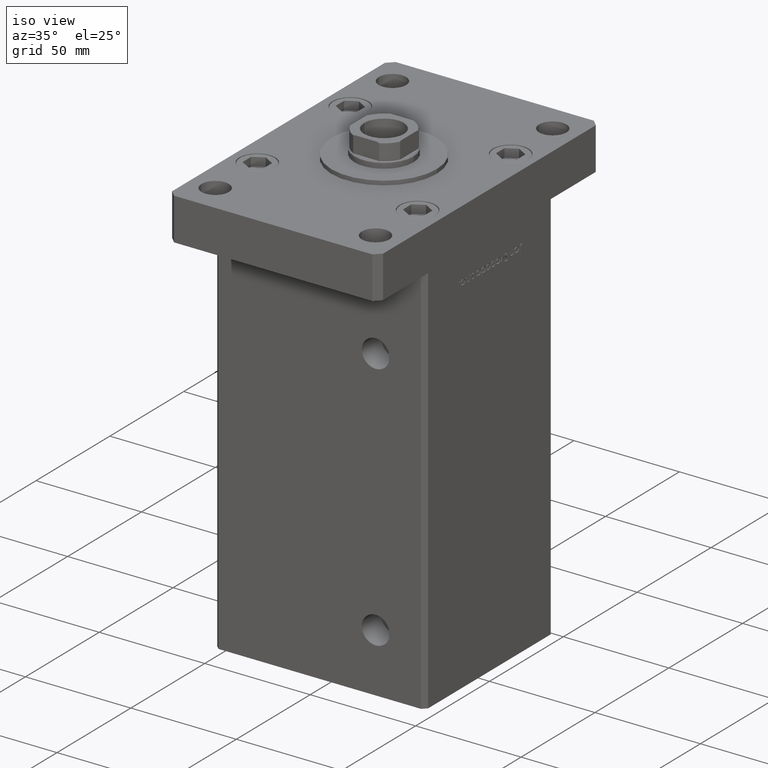
[diagram: clean part render]
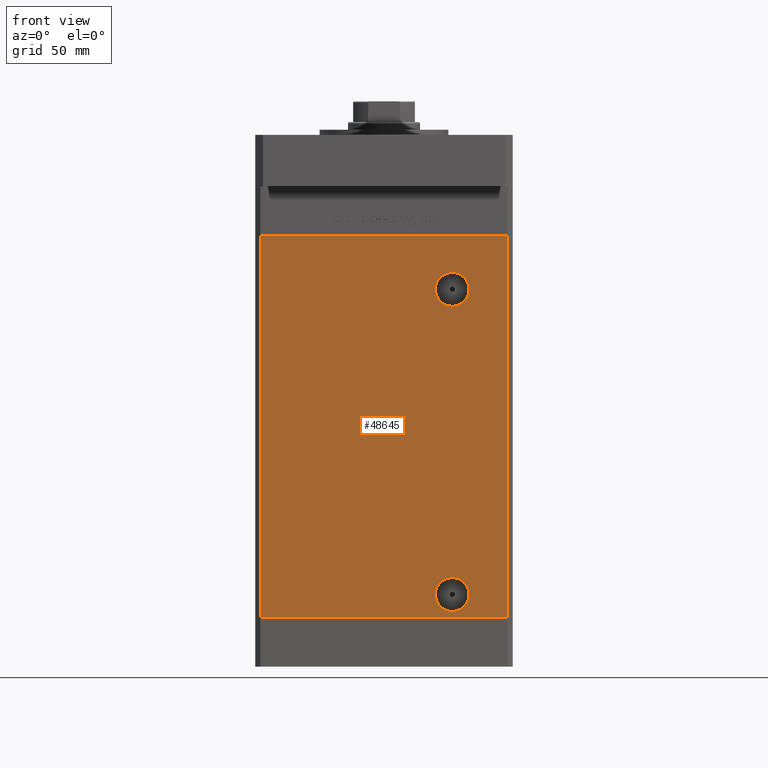
[diagram: tour spotlight — one face highlighted and labeled with its STEP entity id]
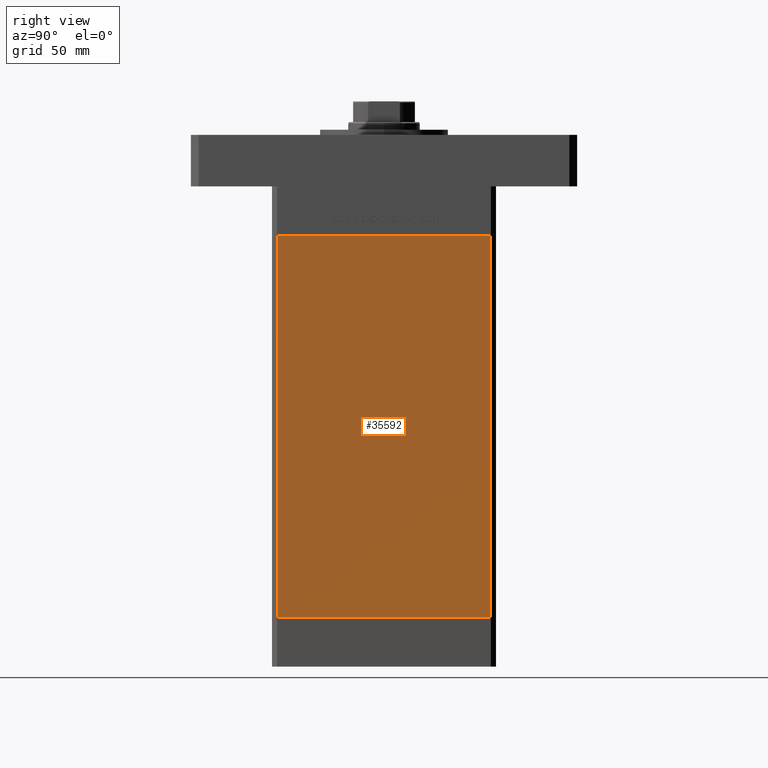
[diagram: tour spotlight — one face highlighted and labeled with its STEP entity id]
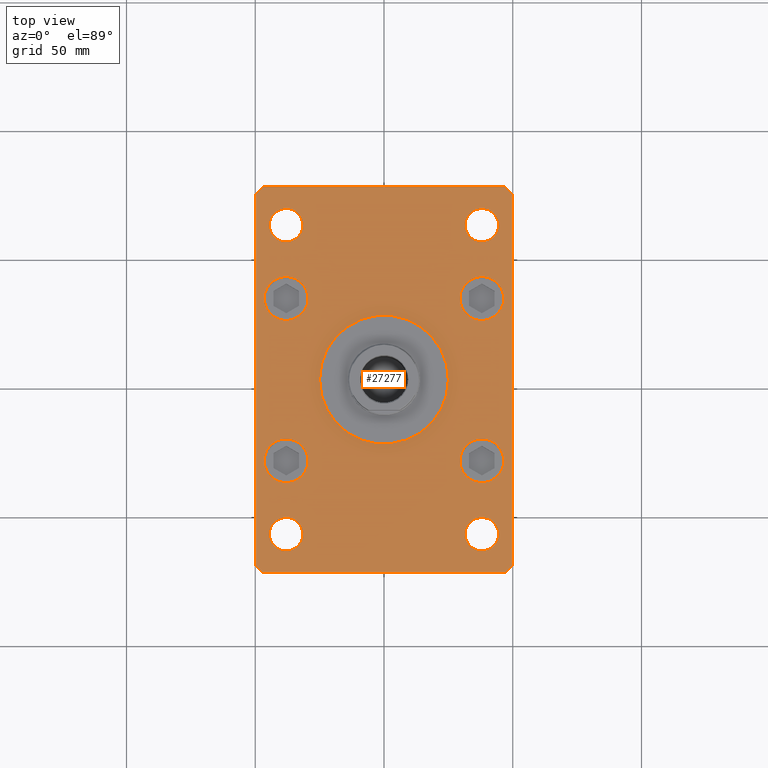
[diagram: tour spotlight — one face highlighted and labeled with its STEP entity id]
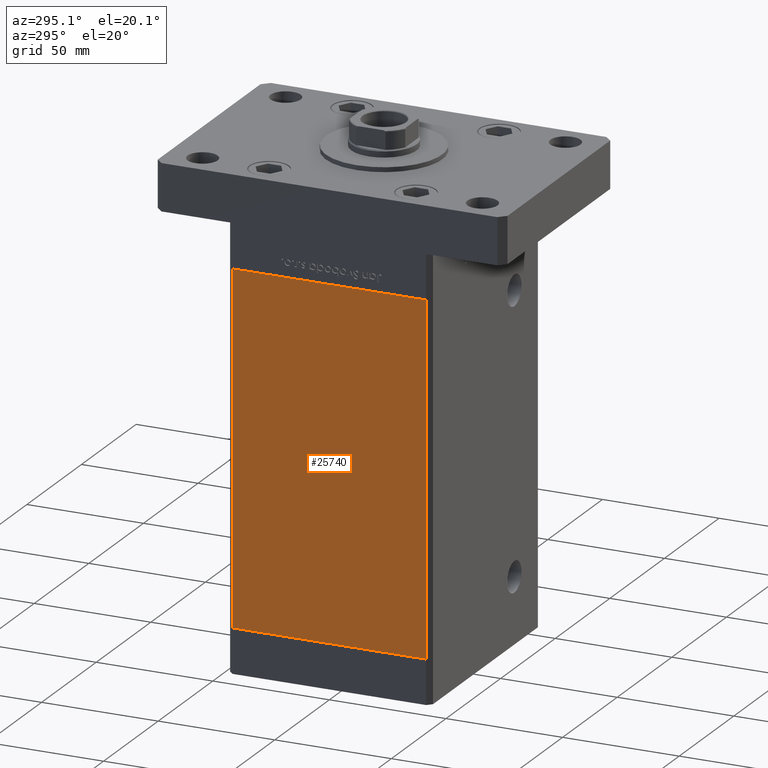
[diagram: tour spotlight — one face highlighted and labeled with its STEP entity id]
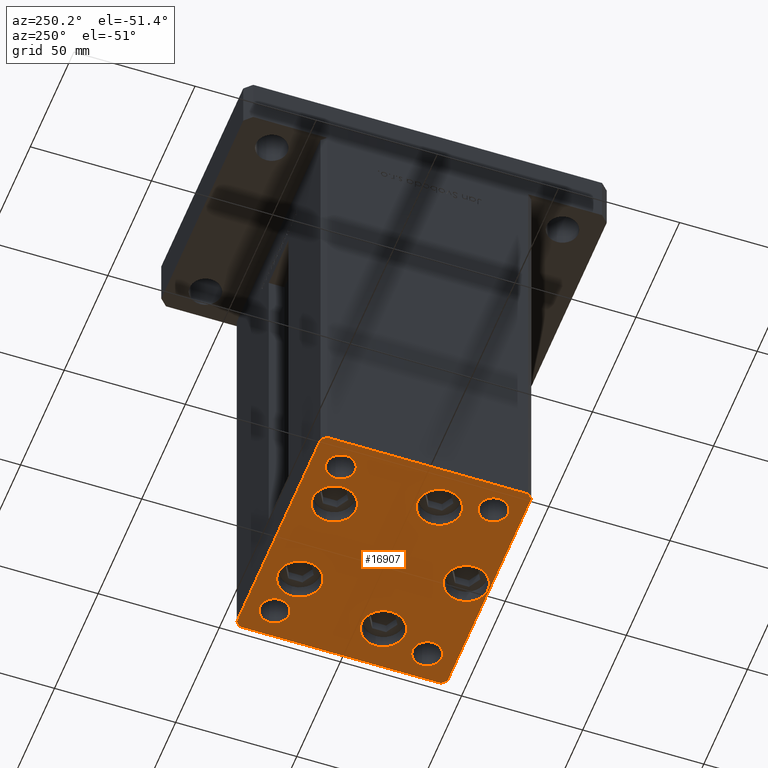
[diagram: tour spotlight — one face highlighted and labeled with its STEP entity id]
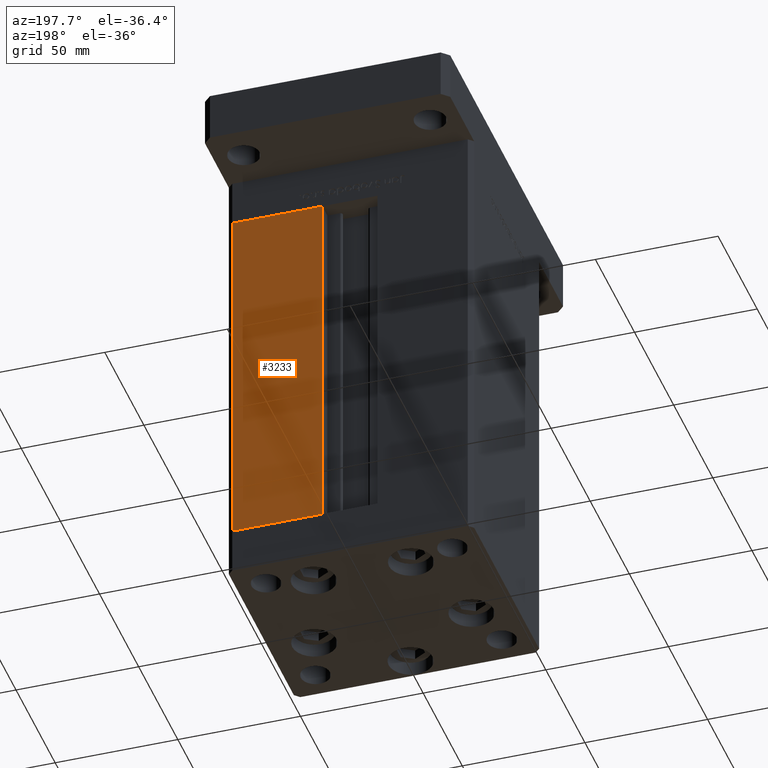
[diagram: tour spotlight — one face highlighted and labeled with its STEP entity id]
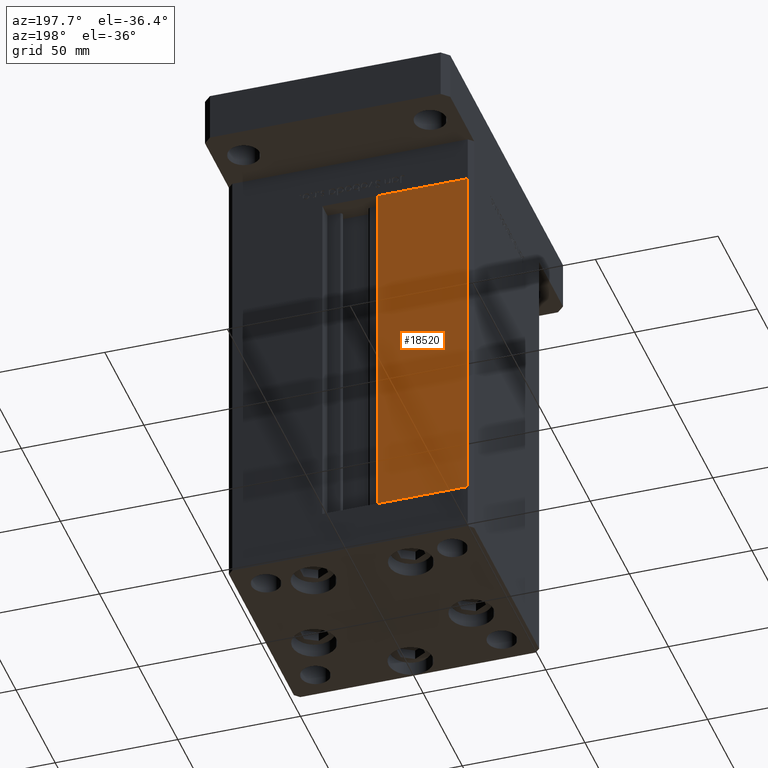
[diagram: tour spotlight — one face highlighted and labeled with its STEP entity id]
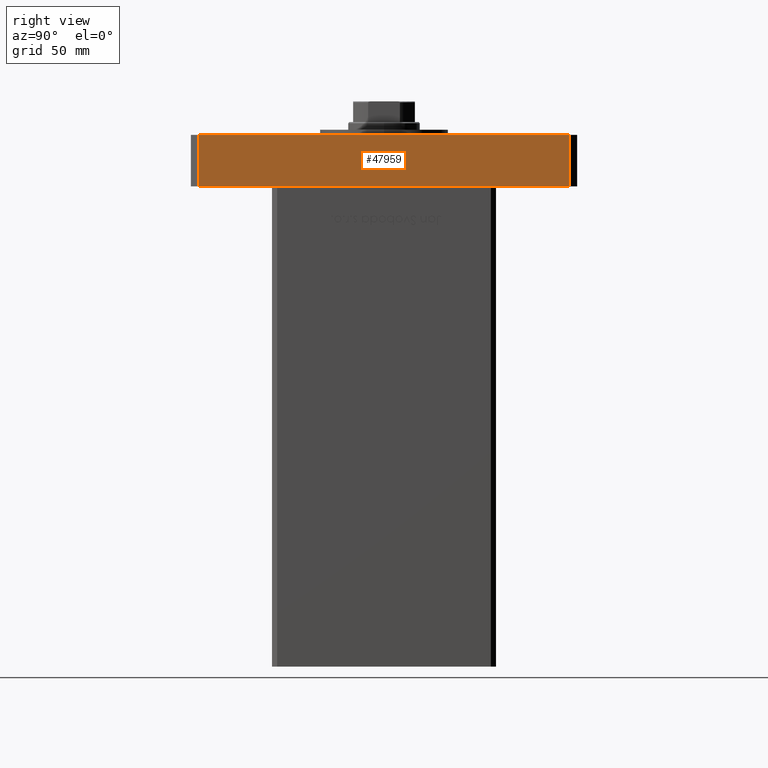
[diagram: tour spotlight — one face highlighted and labeled with its STEP entity id]
A machine part: a face-by-face anatomy tour. The part has 1311 B-rep faces; the first image is the clean iso view, then the 8 largest visible faces are spotlighted one at a time (largest first), each with its STEP entity span.

Face 1 — front view, entity #48645. In plain terms, the highlighted planar face has unit normal (0, 1, 0).
Definition (entity closure, byte-faithful):
#162 = CIRCLE ( 'NONE', #18458, 6.579999999999988525 ) ;
#705 = CARTESIAN_POINT ( 'NONE',  ( 47.99999999999998579, -43.50000000000000000, 0.000000000000000000 ) ) ;
#715 = DIRECTION ( 'NONE',  ( 0.000000000000000000, -0.000000000000000000, 1.000000000000000000 ) ) ;
#1472 = CARTESIAN_POINT ( 'NONE',  ( -47.99999999999998579, -43.50000000000000000, 148.5000000000000000 ) ) ;
#2514 = EDGE_CURVE ( 'NONE', #36673, #20421, #3500, .T. ) ;
#2529 = CARTESIAN_POINT ( 'NONE',  ( 47.99999999999998579, -43.50000000000000000, 148.5000000000000000 ) ) ;
#3500 = CIRCLE ( 'NONE', #16550, 6.579999999999994742 ) ;
#3619 = EDGE_LOOP ( 'NONE', ( #20152, #37011 ) ) ;
#3876 = VECTOR ( 'NONE', #18100, 1000.000000000000000 ) ;
#4077 = VERTEX_POINT ( 'NONE', #39974 ) ;
#4120 = CARTESIAN_POINT ( 'NONE',  ( -47.99999999999998579, -43.50000000000000000, 0.000000000000000000 ) ) ;
#4698 = VECTOR ( 'NONE', #9033, 1000.000000000000000 ) ;
#9033 = DIRECTION ( 'NONE',  ( 1.000000000000000000, 0.000000000000000000, 0.000000000000000000 ) ) ;
#9429 = FACE_OUTER_BOUND ( 'NONE', #30040, .T. ) ;
#9546 = EDGE_CURVE ( 'NONE', #11616, #52578, #12302, .T. ) ;
#9840 = VERTEX_POINT ( 'NONE', #44332 ) ;
#10678 = EDGE_CURVE ( 'NONE', #52578, #11616, #162, .T. ) ;
#11616 = VERTEX_POINT ( 'NONE', #52618 ) ;
#12183 = EDGE_CURVE ( 'NONE', #9840, #4077, #52946, .T. ) ;
#12302 = CIRCLE ( 'NONE', #48043, 6.579999999999988525 ) ;
#14701 = CARTESIAN_POINT ( 'NONE',  ( 26.49999999999997513, -43.50000000000000000, 127.5000000000000000 ) ) ;
#16550 = AXIS2_PLACEMENT_3D ( 'NONE', #44456, #18589, #35199 ) ;
#17103 = EDGE_CURVE ( 'NONE', #4077, #18858, #29744, .T. ) ;
#17337 = DIRECTION ( 'NONE',  ( 0.000000000000000000, 1.000000000000000000, 0.000000000000000000 ) ) ;
#18100 = DIRECTION ( 'NONE',  ( 1.000000000000000000, 0.000000000000000000, 0.000000000000000000 ) ) ;
#18458 = AXIS2_PLACEMENT_3D ( 'NONE', #14701, #52343, #39251 ) ;
#18589 = DIRECTION ( 'NONE',  ( 0.000000000000000000, -1.000000000000000000, 0.000000000000000000 ) ) ;
#18800 = CARTESIAN_POINT ( 'NONE',  ( 26.49999999999998934, -43.50000000000000000, 2.420000000000013252 ) ) ;
#18858 = VERTEX_POINT ( 'NONE', #705 ) ;
#20152 = ORIENTED_EDGE ( 'NONE', *, *, #10678, .T. ) ;
#20421 = VERTEX_POINT ( 'NONE', #29748 ) ;
#21444 = PLANE ( 'NONE',  #49857 ) ;
#22206 = LINE ( 'NONE', #1472, #3876 ) ;
#22507 = AXIS2_PLACEMENT_3D ( 'NONE', #43272, #34805, #29647 ) ;
#24474 = VECTOR ( 'NONE', #35784, 1000.000000000000000 ) ;
#26050 = CARTESIAN_POINT ( 'NONE',  ( 26.49999999999997513, -43.50000000000000000, 127.5000000000000000 ) ) ;
#26331 = CARTESIAN_POINT ( 'NONE',  ( -47.99999999999998579, -43.50000000000000000, 148.5000000000000000 ) ) ;
#27302 = CARTESIAN_POINT ( 'NONE',  ( 47.99999999999998579, -43.50000000000000000, 148.5000000000000000 ) ) ;
#28063 = ORIENTED_EDGE ( 'NONE', *, *, #39337, .F. ) ;
#28540 = ORIENTED_EDGE ( 'NONE', *, *, #17103, .T. ) ;
#29647 = DIRECTION ( 'NONE',  ( 0.000000000000000000, 0.000000000000000000, -1.000000000000000000 ) ) ;
#29744 = LINE ( 'NONE', #4120, #4698 ) ;
#29748 = CARTESIAN_POINT ( 'NONE',  ( 26.49999999999998934, -43.50000000000000000, 15.58000000000000362 ) ) ;
#30040 = EDGE_LOOP ( 'NONE', ( #28540, #28063, #42787, #45528 ) ) ;
#31188 = EDGE_CURVE ( 'NONE', #20421, #36673, #45152, .T. ) ;
#33261 = VECTOR ( 'NONE', #42017, 1000.000000000000000 ) ;
#34805 = DIRECTION ( 'NONE',  ( 0.000000000000000000, -1.000000000000000000, 0.000000000000000000 ) ) ;
#35199 = DIRECTION ( 'NONE',  ( 0.000000000000000000, 0.000000000000000000, -1.000000000000000000 ) ) ;
#35784 = DIRECTION ( 'NONE',  ( -0.000000000000000000, -0.000000000000000000, -1.000000000000000000 ) ) ;
#36673 = VERTEX_POINT ( 'NONE', #18800 ) ;
#37011 = ORIENTED_EDGE ( 'NONE', *, *, #9546, .T. ) ;
#39251 = DIRECTION ( 'NONE',  ( 0.000000000000000000, 0.000000000000000000, -1.000000000000000000 ) ) ;
#39337 = EDGE_CURVE ( 'NONE', #46737, #18858, #39881, .T. ) ;
#39881 = LINE ( 'NONE', #2529, #24474 ) ;
#39974 = CARTESIAN_POINT ( 'NONE',  ( -47.99999999999998579, -43.50000000000000000, 0.000000000000000000 ) ) ;
#42017 = DIRECTION ( 'NONE',  ( -0.000000000000000000, -0.000000000000000000, -1.000000000000000000 ) ) ;
#42420 = DIRECTION ( 'NONE',  ( 0.000000000000000000, 0.000000000000000000, -1.000000000000000000 ) ) ;
#42787 = ORIENTED_EDGE ( 'NONE', *, *, #53649, .F. ) ;
#43123 = EDGE_LOOP ( 'NONE', ( #51589, #51239 ) ) ;
#43272 = CARTESIAN_POINT ( 'NONE',  ( 26.49999999999998934, -43.50000000000000000, 9.000000000000007105 ) ) ;
#44332 = CARTESIAN_POINT ( 'NONE',  ( -47.99999999999998579, -43.50000000000000000, 148.5000000000000000 ) ) ;
#44456 = CARTESIAN_POINT ( 'NONE',  ( 26.49999999999998934, -43.50000000000000000, 9.000000000000007105 ) ) ;
#45152 = CIRCLE ( 'NONE', #22507, 6.579999999999994742 ) ;
#45528 = ORIENTED_EDGE ( 'NONE', *, *, #12183, .T. ) ;
#45983 = DIRECTION ( 'NONE',  ( -0.000000000000000000, 1.000000000000000000, -0.000000000000000000 ) ) ;
#46737 = VERTEX_POINT ( 'NONE', #27302 ) ;
#47049 = FACE_BOUND ( 'NONE', #43123, .T. ) ;
#48043 = AXIS2_PLACEMENT_3D ( 'NONE', #26050, #45983, #42420 ) ;
#48645 = ADVANCED_FACE ( 'NONE', ( #47049, #9429, #51697 ), #21444, .F. ) ;
#48853 = CARTESIAN_POINT ( 'NONE',  ( -47.99999999999998579, -43.50000000000000000, 148.5000000000000000 ) ) ;
#49857 = AXIS2_PLACEMENT_3D ( 'NONE', #26331, #17337, #715 ) ;
#51239 = ORIENTED_EDGE ( 'NONE', *, *, #31188, .F. ) ;
#51589 = ORIENTED_EDGE ( 'NONE', *, *, #2514, .F. ) ;
#51697 = FACE_BOUND ( 'NONE', #3619, .T. ) ;
#52343 = DIRECTION ( 'NONE',  ( -0.000000000000000000, 1.000000000000000000, -0.000000000000000000 ) ) ;
#52420 = CARTESIAN_POINT ( 'NONE',  ( 26.49999999999997513, -43.50000000000000000, 120.9200000000000159 ) ) ;
#52578 = VERTEX_POINT ( 'NONE', #52420 ) ;
#52618 = CARTESIAN_POINT ( 'NONE',  ( 26.49999999999997513, -43.50000000000000000, 134.0800000000000125 ) ) ;
#52946 = LINE ( 'NONE', #48853, #33261 ) ;
#53649 = EDGE_CURVE ( 'NONE', #9840, #46737, #22206, .T. ) ;

Face 2 — right view, entity #35592. In plain terms, the highlighted planar face has unit normal (1, -0, 0).
Definition (entity closure, byte-faithful):
#629 = VECTOR ( 'NONE', #14181, 1000.000000000000000 ) ;
#2155 = CARTESIAN_POINT ( 'NONE',  ( 49.99999999999998579, -41.49999999999999289, 0.000000000000000000 ) ) ;
#2635 = VECTOR ( 'NONE', #10506, 1000.000000000000000 ) ;
#3669 = ORIENTED_EDGE ( 'NONE', *, *, #38125, .T. ) ;
#5714 = CARTESIAN_POINT ( 'NONE',  ( 50.00000000000001421, 41.49999999999999289, 148.5000000000000000 ) ) ;
#9259 = DIRECTION ( 'NONE',  ( -3.344045254895050973E-16, -1.000000000000000000, 0.000000000000000000 ) ) ;
#9525 = LINE ( 'NONE', #26157, #12692 ) ;
#10506 = DIRECTION ( 'NONE',  ( -0.000000000000000000, -0.000000000000000000, -1.000000000000000000 ) ) ;
#12692 = VECTOR ( 'NONE', #9259, 1000.000000000000000 ) ;
#13382 = FACE_OUTER_BOUND ( 'NONE', #24778, .T. ) ;
#13637 = LINE ( 'NONE', #5714, #629 ) ;
#14181 = DIRECTION ( 'NONE',  ( -0.000000000000000000, -0.000000000000000000, -1.000000000000000000 ) ) ;
#14363 = CARTESIAN_POINT ( 'NONE',  ( 50.00000000000001421, 41.49999999999999289, 0.000000000000000000 ) ) ;
#14888 = CARTESIAN_POINT ( 'NONE',  ( 50.00000000000001421, 41.49999999999999289, 148.5000000000000000 ) ) ;
#18273 = DIRECTION ( 'NONE',  ( 3.344045254895050480E-16, 1.000000000000000000, 0.000000000000000000 ) ) ;
#18750 = CARTESIAN_POINT ( 'NONE',  ( 49.99999999999998579, -41.49999999999999289, 148.5000000000000000 ) ) ;
#20024 = DIRECTION ( 'NONE',  ( -3.344045254895050973E-16, -1.000000000000000000, 0.000000000000000000 ) ) ;
#22379 = DIRECTION ( 'NONE',  ( 1.000000000000000000, -3.344045254895050480E-16, 0.000000000000000000 ) ) ;
#23074 = VERTEX_POINT ( 'NONE', #14888 ) ;
#23529 = EDGE_CURVE ( 'NONE', #27935, #27660, #9525, .T. ) ;
#24778 = EDGE_LOOP ( 'NONE', ( #48113, #33368, #50910, #3669 ) ) ;
#26157 = CARTESIAN_POINT ( 'NONE',  ( 50.00000000000001421, 41.49999999999999289, 0.000000000000000000 ) ) ;
#27660 = VERTEX_POINT ( 'NONE', #2155 ) ;
#27935 = VERTEX_POINT ( 'NONE', #14363 ) ;
#29258 = EDGE_CURVE ( 'NONE', #23074, #27935, #13637, .T. ) ;
#29690 = VERTEX_POINT ( 'NONE', #18750 ) ;
#30003 = PLANE ( 'NONE',  #48721 ) ;
#30528 = CARTESIAN_POINT ( 'NONE',  ( 50.00000000000001421, 41.49999999999999289, 148.5000000000000000 ) ) ;
#31207 = LINE ( 'NONE', #38859, #2635 ) ;
#33368 = ORIENTED_EDGE ( 'NONE', *, *, #29258, .F. ) ;
#35011 = VECTOR ( 'NONE', #20024, 1000.000000000000000 ) ;
#35592 = ADVANCED_FACE ( 'NONE', ( #13382 ), #30003, .T. ) ;
#36633 = LINE ( 'NONE', #53283, #35011 ) ;
#38125 = EDGE_CURVE ( 'NONE', #29690, #27660, #31207, .T. ) ;
#38859 = CARTESIAN_POINT ( 'NONE',  ( 49.99999999999998579, -41.49999999999999289, 148.5000000000000000 ) ) ;
#47591 = EDGE_CURVE ( 'NONE', #23074, #29690, #36633, .T. ) ;
#48113 = ORIENTED_EDGE ( 'NONE', *, *, #23529, .F. ) ;
#48721 = AXIS2_PLACEMENT_3D ( 'NONE', #30528, #22379, #18273 ) ;
#50910 = ORIENTED_EDGE ( 'NONE', *, *, #47591, .T. ) ;
#53283 = CARTESIAN_POINT ( 'NONE',  ( 50.00000000000001421, 41.49999999999999289, 148.5000000000000000 ) ) ;

Face 3 — top view, entity #27277. In plain terms, the highlighted planar face has unit normal (0, 0, 1).
Definition (entity closure, byte-faithful):
#641 = EDGE_CURVE ( 'NONE', #40789, #23986, #52249, .T. ) ;
#646 = CARTESIAN_POINT ( 'NONE',  ( 37.99999999999999289, 31.49999999999999289, 20.00000000000000000 ) ) ;
#723 = EDGE_LOOP ( 'NONE', ( #44449, #52313, #34681, #4861, #40569, #39064, #17811, #44452 ) ) ;
#795 = EDGE_CURVE ( 'NONE', #40694, #3679, #48730, .T. ) ;
#983 = CARTESIAN_POINT ( 'NONE',  ( 50.00000000000000000, 72.00000000000001421, 20.00000000000000000 ) ) ;
#1189 = DIRECTION ( 'NONE',  ( 1.000000000000000000, 0.000000000000000000, 0.000000000000000000 ) ) ;
#1613 = ORIENTED_EDGE ( 'NONE', *, *, #24911, .F. ) ;
#1620 = EDGE_LOOP ( 'NONE', ( #34848, #25870 ) ) ;
#1795 = VECTOR ( 'NONE', #38665, 1000.000000000000000 ) ;
#2254 = DIRECTION ( 'NONE',  ( 1.927470528863118802E-16, -1.000000000000000000, 0.000000000000000000 ) ) ;
#2266 = AXIS2_PLACEMENT_3D ( 'NONE', #41833, #17030, #33639 ) ;
#2554 = EDGE_CURVE ( 'NONE', #2938, #34992, #10483, .T. ) ;
#2938 = VERTEX_POINT ( 'NONE', #23144 ) ;
#3003 = DIRECTION ( 'NONE',  ( 0.000000000000000000, 0.000000000000000000, 1.000000000000000000 ) ) ;
#3135 = FACE_BOUND ( 'NONE', #22003, .T. ) ;
#3193 = CARTESIAN_POINT ( 'NONE',  ( -47.00000000000002842, 75.00000000000000000, 20.00000000000000000 ) ) ;
#3391 = ORIENTED_EDGE ( 'NONE', *, *, #21586, .F. ) ;
#3553 = CARTESIAN_POINT ( 'NONE',  ( -29.50000000000000711, 31.50000000000000000, 20.00000000000000000 ) ) ;
#3571 = CARTESIAN_POINT ( 'NONE',  ( 50.00000000000000000, -71.99999999999988631, 20.00000000000000000 ) ) ;
#3679 = VERTEX_POINT ( 'NONE', #23947 ) ;
#4523 = DIRECTION ( 'NONE',  ( 1.000000000000000000, 0.000000000000000000, 0.000000000000000000 ) ) ;
#4861 = ORIENTED_EDGE ( 'NONE', *, *, #37832, .T. ) ;
#4948 = ORIENTED_EDGE ( 'NONE', *, *, #19760, .F. ) ;
#5009 = CIRCLE ( 'NONE', #26813, 8.499999999999992895 ) ;
#5055 = CARTESIAN_POINT ( 'NONE',  ( 50.00000000000000000, -71.99999999999988631, 20.00000000000000000 ) ) ;
#5327 = CIRCLE ( 'NONE', #45395, 6.499999999999999112 ) ;
#5328 = CARTESIAN_POINT ( 'NONE',  ( 37.99999999999999289, -31.49999999999999289, 20.00000000000000000 ) ) ;
#6179 = CIRCLE ( 'NONE', #47093, 6.499999999999999112 ) ;
#6261 = CARTESIAN_POINT ( 'NONE',  ( -31.49999999999999289, 59.99999999999999289, 20.00000000000000000 ) ) ;
#6347 = DIRECTION ( 'NONE',  ( 0.000000000000000000, 0.000000000000000000, 1.000000000000000000 ) ) ;
#6814 = DIRECTION ( 'NONE',  ( 0.000000000000000000, 0.000000000000000000, 1.000000000000000000 ) ) ;
#6903 = VERTEX_POINT ( 'NONE', #22586 ) ;
#6986 = AXIS2_PLACEMENT_3D ( 'NONE', #24216, #40843, #19065 ) ;
#7137 = LINE ( 'NONE', #15868, #14823 ) ;
#7290 = LINE ( 'NONE', #3193, #43206 ) ;
#7450 = DIRECTION ( 'NONE',  ( 0.000000000000000000, 0.000000000000000000, 1.000000000000000000 ) ) ;
#7574 = VERTEX_POINT ( 'NONE', #36410 ) ;
#7819 = AXIS2_PLACEMENT_3D ( 'NONE', #30881, #6347, #14528 ) ;
#8017 = CARTESIAN_POINT ( 'NONE',  ( 47.00000000000002842, 75.00000000000002842, 20.00000000000000000 ) ) ;
#8085 = VECTOR ( 'NONE', #14327, 1000.000000000000000 ) ;
#8153 = ORIENTED_EDGE ( 'NONE', *, *, #42667, .F. ) ;
#8633 = ORIENTED_EDGE ( 'NONE', *, *, #9750, .F. ) ;
#8914 = CARTESIAN_POINT ( 'NONE',  ( 44.49999999999997868, -60.00000000000000711, 20.00000000000000000 ) ) ;
#9160 = LINE ( 'NONE', #5055, #43931 ) ;
#9366 = VERTEX_POINT ( 'NONE', #43300 ) ;
#9392 = CARTESIAN_POINT ( 'NONE',  ( -25.00000000000000000, 0.000000000000000000, 20.00000000000000000 ) ) ;
#9540 = AXIS2_PLACEMENT_3D ( 'NONE', #53772, #32214, #28403 ) ;
#9622 = AXIS2_PLACEMENT_3D ( 'NONE', #15021, #3003, #14749 ) ;
#9704 = DIRECTION ( 'NONE',  ( 0.000000000000000000, 0.000000000000000000, 1.000000000000000000 ) ) ;
#9750 = EDGE_CURVE ( 'NONE', #18305, #28487, #5327, .T. ) ;
#9901 = DIRECTION ( 'NONE',  ( 1.000000000000000000, 0.000000000000000000, 0.000000000000000000 ) ) ;
#10483 = CIRCLE ( 'NONE', #9622, 8.499999999999992895 ) ;
#10704 = AXIS2_PLACEMENT_3D ( 'NONE', #5328, #9704, #18420 ) ;
#10978 = CIRCLE ( 'NONE', #2266, 6.499999999999999112 ) ;
#11209 = CARTESIAN_POINT ( 'NONE',  ( 31.49999999999997868, -60.00000000000000711, 20.00000000000000000 ) ) ;
#11309 = VERTEX_POINT ( 'NONE', #3571 ) ;
#11724 = EDGE_CURVE ( 'NONE', #48531, #35459, #12385, .T. ) ;
#11749 = AXIS2_PLACEMENT_3D ( 'NONE', #12715, #41883, #4523 ) ;
#11998 = VERTEX_POINT ( 'NONE', #983 ) ;
#12376 = AXIS2_PLACEMENT_3D ( 'NONE', #45952, #25218, #50309 ) ;
#12385 = CIRCLE ( 'NONE', #37629, 8.500000000000000000 ) ;
#12715 = CARTESIAN_POINT ( 'NONE',  ( -37.99999999999997868, -60.00000000000000711, 20.00000000000000000 ) ) ;
#13621 = VERTEX_POINT ( 'NONE', #3553 ) ;
#13966 = CIRCLE ( 'NONE', #6986, 6.499999999999999112 ) ;
#14211 = CARTESIAN_POINT ( 'NONE',  ( -38.00000000000000711, 31.50000000000000000, 20.00000000000000000 ) ) ;
#14327 = DIRECTION ( 'NONE',  ( 1.000000000000000000, 1.181088324069315250E-15, 0.000000000000000000 ) ) ;
#14345 = VERTEX_POINT ( 'NONE', #11209 ) ;
#14528 = DIRECTION ( 'NONE',  ( 1.000000000000000000, 0.000000000000000000, 0.000000000000000000 ) ) ;
#14630 = DIRECTION ( 'NONE',  ( 1.000000000000000000, 0.000000000000000000, 0.000000000000000000 ) ) ;
#14749 = DIRECTION ( 'NONE',  ( 1.000000000000000000, 0.000000000000000000, 0.000000000000000000 ) ) ;
#14782 = VECTOR ( 'NONE', #41316, 1000.000000000000114 ) ;
#14823 = VECTOR ( 'NONE', #40409, 1000.000000000000000 ) ;
#14858 = DIRECTION ( 'NONE',  ( 0.000000000000000000, 0.000000000000000000, 1.000000000000000000 ) ) ;
#14881 = FACE_BOUND ( 'NONE', #1620, .T. ) ;
#15021 = CARTESIAN_POINT ( 'NONE',  ( 37.99999999999999289, 31.49999999999999289, 20.00000000000000000 ) ) ;
#15423 = LINE ( 'NONE', #45413, #14782 ) ;
#15635 = CARTESIAN_POINT ( 'NONE',  ( 37.99999999999997868, -60.00000000000000711, 20.00000000000000000 ) ) ;
#15792 = AXIS2_PLACEMENT_3D ( 'NONE', #21528, #29696, #46869 ) ;
#15868 = CARTESIAN_POINT ( 'NONE',  ( 47.00000000000002842, 75.00000000000002842, 20.00000000000000000 ) ) ;
#16320 = CARTESIAN_POINT ( 'NONE',  ( 46.49999999999998579, 31.49999999999999289, 20.00000000000000000 ) ) ;
#17030 = DIRECTION ( 'NONE',  ( 0.000000000000000000, 0.000000000000000000, 1.000000000000000000 ) ) ;
#17071 = CARTESIAN_POINT ( 'NONE',  ( -29.50000000000000711, -31.50000000000000000, 20.00000000000000000 ) ) ;
#17737 = VERTEX_POINT ( 'NONE', #35778 ) ;
#17811 = ORIENTED_EDGE ( 'NONE', *, *, #30824, .T. ) ;
#18218 = AXIS2_PLACEMENT_3D ( 'NONE', #15635, #7450, #23029 ) ;
#18287 = CARTESIAN_POINT ( 'NONE',  ( -47.00000000000000000, -75.00000000000000000, 20.00000000000000000 ) ) ;
#18305 = VERTEX_POINT ( 'NONE', #6261 ) ;
#18420 = DIRECTION ( 'NONE',  ( 1.000000000000000000, 0.000000000000000000, 0.000000000000000000 ) ) ;
#19065 = DIRECTION ( 'NONE',  ( 1.000000000000000000, 0.000000000000000000, 0.000000000000000000 ) ) ;
#19521 = PLANE ( 'NONE',  #34553 ) ;
#19760 = EDGE_CURVE ( 'NONE', #17737, #6903, #50095, .T. ) ;
#20128 = AXIS2_PLACEMENT_3D ( 'NONE', #44172, #6814, #35985 ) ;
#20193 = DIRECTION ( 'NONE',  ( 1.000000000000000000, 0.000000000000000000, 0.000000000000000000 ) ) ;
#20295 = CIRCLE ( 'NONE', #10704, 8.499999999999992895 ) ;
#20424 = VERTEX_POINT ( 'NONE', #18287 ) ;
#21528 = CARTESIAN_POINT ( 'NONE',  ( -38.00000000000000711, 31.50000000000000000, 20.00000000000000000 ) ) ;
#21571 = ORIENTED_EDGE ( 'NONE', *, *, #44282, .F. ) ;
#21586 = EDGE_CURVE ( 'NONE', #13621, #32087, #29211, .T. ) ;
#21785 = CARTESIAN_POINT ( 'NONE',  ( 50.00000000000000000, 72.00000000000001421, 20.00000000000000000 ) ) ;
#22003 = EDGE_LOOP ( 'NONE', ( #38405, #29828 ) ) ;
#22057 = LINE ( 'NONE', #21785, #1795 ) ;
#22457 = DIRECTION ( 'NONE',  ( 0.000000000000000000, 0.000000000000000000, 1.000000000000000000 ) ) ;
#22519 = DIRECTION ( 'NONE',  ( 1.000000000000000000, 0.000000000000000000, 0.000000000000000000 ) ) ;
#22586 = CARTESIAN_POINT ( 'NONE',  ( -44.49999999999997868, -60.00000000000000711, 20.00000000000000000 ) ) ;
#23029 = DIRECTION ( 'NONE',  ( 1.000000000000000000, 0.000000000000000000, 0.000000000000000000 ) ) ;
#23144 = CARTESIAN_POINT ( 'NONE',  ( 29.49999999999999645, 31.49999999999999289, 20.00000000000000000 ) ) ;
#23947 = CARTESIAN_POINT ( 'NONE',  ( 25.00000000000000000, 3.061616997868383043E-15, 20.00000000000000000 ) ) ;
#23986 = VERTEX_POINT ( 'NONE', #48139 ) ;
#24186 = DIRECTION ( 'NONE',  ( -0.7071067811865459074, -0.7071067811865491270, 0.000000000000000000 ) ) ;
#24197 = VECTOR ( 'NONE', #2254, 1000.000000000000000 ) ;
#24216 = CARTESIAN_POINT ( 'NONE',  ( 38.00000000000000000, 59.99999999999998579, 20.00000000000000000 ) ) ;
#24569 = EDGE_CURVE ( 'NONE', #41898, #46942, #7290, .T. ) ;
#24755 = LINE ( 'NONE', #40309, #36724 ) ;
#24911 = EDGE_CURVE ( 'NONE', #33885, #14345, #10978, .T. ) ;
#25218 = DIRECTION ( 'NONE',  ( 0.000000000000000000, 0.000000000000000000, 1.000000000000000000 ) ) ;
#25870 = ORIENTED_EDGE ( 'NONE', *, *, #641, .F. ) ;
#25988 = AXIS2_PLACEMENT_3D ( 'NONE', #34765, #14858, #22519 ) ;
#26093 = CARTESIAN_POINT ( 'NONE',  ( -37.99999999999999289, 59.99999999999999289, 20.00000000000000000 ) ) ;
#26405 = VERTEX_POINT ( 'NONE', #37933 ) ;
#26600 = LINE ( 'NONE', #30403, #8085 ) ;
#26781 = ORIENTED_EDGE ( 'NONE', *, *, #30631, .F. ) ;
#26813 = AXIS2_PLACEMENT_3D ( 'NONE', #646, #43155, #9901 ) ;
#26900 = ORIENTED_EDGE ( 'NONE', *, *, #32819, .F. ) ;
#26901 = DIRECTION ( 'NONE',  ( 0.000000000000000000, 0.000000000000000000, 1.000000000000000000 ) ) ;
#27277 = ADVANCED_FACE ( 'NONE', ( #3135, #35861, #14881, #51986, #52518, #43519, #31763, #48416, #27679, #40229 ), #19521, .T. ) ;
#27679 = FACE_BOUND ( 'NONE', #32082, .T. ) ;
#27952 = DIRECTION ( 'NONE',  ( 0.000000000000000000, 0.000000000000000000, 1.000000000000000000 ) ) ;
#28344 = ORIENTED_EDGE ( 'NONE', *, *, #46619, .F. ) ;
#28403 = DIRECTION ( 'NONE',  ( 1.000000000000000000, 0.000000000000000000, 0.000000000000000000 ) ) ;
#28487 = VERTEX_POINT ( 'NONE', #46148 ) ;
#28595 = EDGE_LOOP ( 'NONE', ( #28344, #4948 ) ) ;
#29187 = CARTESIAN_POINT ( 'NONE',  ( -46.50000000000000711, -31.50000000000000000, 20.00000000000000000 ) ) ;
#29211 = CIRCLE ( 'NONE', #52735, 8.500000000000000000 ) ;
#29696 = DIRECTION ( 'NONE',  ( 0.000000000000000000, 0.000000000000000000, 1.000000000000000000 ) ) ;
#29828 = ORIENTED_EDGE ( 'NONE', *, *, #37214, .F. ) ;
#30403 = CARTESIAN_POINT ( 'NONE',  ( -47.00000000000000000, -75.00000000000000000, 20.00000000000000000 ) ) ;
#30631 = EDGE_CURVE ( 'NONE', #34992, #2938, #5009, .T. ) ;
#30824 = EDGE_CURVE ( 'NONE', #46942, #7574, #47520, .T. ) ;
#30881 = CARTESIAN_POINT ( 'NONE',  ( 37.99999999999999289, -31.49999999999999289, 20.00000000000000000 ) ) ;
#30940 = DIRECTION ( 'NONE',  ( 0.000000000000000000, 1.000000000000000000, 0.000000000000000000 ) ) ;
#31426 = CIRCLE ( 'NONE', #15792, 8.500000000000000000 ) ;
#31763 = FACE_BOUND ( 'NONE', #38247, .T. ) ;
#32082 = EDGE_LOOP ( 'NONE', ( #34640, #26781 ) ) ;
#32087 = VERTEX_POINT ( 'NONE', #32275 ) ;
#32214 = DIRECTION ( 'NONE',  ( 0.000000000000000000, 0.000000000000000000, 1.000000000000000000 ) ) ;
#32275 = CARTESIAN_POINT ( 'NONE',  ( -46.50000000000000711, 31.50000000000000000, 20.00000000000000000 ) ) ;
#32819 = EDGE_CURVE ( 'NONE', #28487, #18305, #51264, .T. ) ;
#33639 = DIRECTION ( 'NONE',  ( 1.000000000000000000, 0.000000000000000000, 0.000000000000000000 ) ) ;
#33885 = VERTEX_POINT ( 'NONE', #8914 ) ;
#34022 = DIRECTION ( 'NONE',  ( 0.000000000000000000, 0.000000000000000000, 1.000000000000000000 ) ) ;
#34307 = EDGE_CURVE ( 'NONE', #14345, #33885, #34741, .T. ) ;
#34553 = AXIS2_PLACEMENT_3D ( 'NONE', #48678, #27952, #40495 ) ;
#34640 = ORIENTED_EDGE ( 'NONE', *, *, #2554, .F. ) ;
#34681 = ORIENTED_EDGE ( 'NONE', *, *, #52985, .T. ) ;
#34701 = CARTESIAN_POINT ( 'NONE',  ( 38.00000000000000000, 59.99999999999998579, 20.00000000000000000 ) ) ;
#34741 = CIRCLE ( 'NONE', #18218, 6.499999999999999112 ) ;
#34753 = DIRECTION ( 'NONE',  ( 0.000000000000000000, 0.000000000000000000, 1.000000000000000000 ) ) ;
#34765 = CARTESIAN_POINT ( 'NONE',  ( -37.99999999999999289, 59.99999999999999289, 20.00000000000000000 ) ) ;
#34818 = CIRCLE ( 'NONE', #40039, 25.00000000000000000 ) ;
#34848 = ORIENTED_EDGE ( 'NONE', *, *, #48704, .F. ) ;
#34992 = VERTEX_POINT ( 'NONE', #16320 ) ;
#35005 = CARTESIAN_POINT ( 'NONE',  ( 46.49999999999998579, -31.49999999999999289, 20.00000000000000000 ) ) ;
#35459 = VERTEX_POINT ( 'NONE', #29187 ) ;
#35778 = CARTESIAN_POINT ( 'NONE',  ( -31.49999999999997868, -60.00000000000000711, 20.00000000000000000 ) ) ;
#35861 = FACE_BOUND ( 'NONE', #46880, .T. ) ;
#35985 = DIRECTION ( 'NONE',  ( 1.000000000000000000, 0.000000000000000000, 0.000000000000000000 ) ) ;
#36297 = DIRECTION ( 'NONE',  ( 1.000000000000000000, 0.000000000000000000, 0.000000000000000000 ) ) ;
#36319 = VERTEX_POINT ( 'NONE', #8017 ) ;
#36410 = CARTESIAN_POINT ( 'NONE',  ( -49.99999999999998579, -72.00000000000001421, 20.00000000000000000 ) ) ;
#36583 = EDGE_CURVE ( 'NONE', #36319, #41898, #7137, .T. ) ;
#36724 = VECTOR ( 'NONE', #49033, 1000.000000000000114 ) ;
#37214 = EDGE_CURVE ( 'NONE', #3679, #40694, #34818, .T. ) ;
#37629 = AXIS2_PLACEMENT_3D ( 'NONE', #38920, #34022, #50945 ) ;
#37832 = EDGE_CURVE ( 'NONE', #11998, #36319, #22057, .T. ) ;
#37933 = CARTESIAN_POINT ( 'NONE',  ( 31.50000000000000000, 59.99999999999998579, 20.00000000000000000 ) ) ;
#38247 = EDGE_LOOP ( 'NONE', ( #47149, #8153 ) ) ;
#38405 = ORIENTED_EDGE ( 'NONE', *, *, #795, .F. ) ;
#38483 = CARTESIAN_POINT ( 'NONE',  ( 47.00000000000001421, -74.99999999999988631, 20.00000000000000000 ) ) ;
#38512 = CIRCLE ( 'NONE', #12376, 6.499999999999999112 ) ;
#38582 = CARTESIAN_POINT ( 'NONE',  ( 0.000000000000000000, 0.000000000000000000, 20.00000000000000000 ) ) ;
#38665 = DIRECTION ( 'NONE',  ( -0.7071067811865426878, 0.7071067811865524577, 0.000000000000000000 ) ) ;
#38920 = CARTESIAN_POINT ( 'NONE',  ( -38.00000000000000711, -31.50000000000000000, 20.00000000000000000 ) ) ;
#39064 = ORIENTED_EDGE ( 'NONE', *, *, #24569, .T. ) ;
#39587 = CARTESIAN_POINT ( 'NONE',  ( -47.00000000000002842, 75.00000000000000000, 20.00000000000000000 ) ) ;
#39606 = CARTESIAN_POINT ( 'NONE',  ( -50.00000000000001421, 72.00000000000000000, 20.00000000000000000 ) ) ;
#40039 = AXIS2_PLACEMENT_3D ( 'NONE', #38582, #34753, #36297 ) ;
#40107 = CIRCLE ( 'NONE', #20128, 8.500000000000000000 ) ;
#40151 = VERTEX_POINT ( 'NONE', #38483 ) ;
#40229 = FACE_BOUND ( 'NONE', #42181, .T. ) ;
#40309 = CARTESIAN_POINT ( 'NONE',  ( -49.99999999999998579, -72.00000000000001421, 20.00000000000000000 ) ) ;
#40409 = DIRECTION ( 'NONE',  ( -1.000000000000000000, -2.952720810173287140E-16, 0.000000000000000000 ) ) ;
#40495 = DIRECTION ( 'NONE',  ( 1.000000000000000000, 0.000000000000000000, -0.000000000000000000 ) ) ;
#40569 = ORIENTED_EDGE ( 'NONE', *, *, #36583, .T. ) ;
#40606 = EDGE_CURVE ( 'NONE', #40151, #11309, #15423, .T. ) ;
#40694 = VERTEX_POINT ( 'NONE', #9392 ) ;
#40789 = VERTEX_POINT ( 'NONE', #35005 ) ;
#40843 = DIRECTION ( 'NONE',  ( 0.000000000000000000, 0.000000000000000000, 1.000000000000000000 ) ) ;
#41316 = DIRECTION ( 'NONE',  ( 0.7071067811865459074, 0.7071067811865491270, 0.000000000000000000 ) ) ;
#41480 = EDGE_CURVE ( 'NONE', #26405, #9366, #13966, .T. ) ;
#41833 = CARTESIAN_POINT ( 'NONE',  ( 37.99999999999997868, -60.00000000000000711, 20.00000000000000000 ) ) ;
#41883 = DIRECTION ( 'NONE',  ( 0.000000000000000000, 0.000000000000000000, 1.000000000000000000 ) ) ;
#41898 = VERTEX_POINT ( 'NONE', #39587 ) ;
#42181 = EDGE_LOOP ( 'NONE', ( #51639, #1613 ) ) ;
#42667 = EDGE_CURVE ( 'NONE', #9366, #26405, #6179, .T. ) ;
#43155 = DIRECTION ( 'NONE',  ( 0.000000000000000000, 0.000000000000000000, 1.000000000000000000 ) ) ;
#43206 = VECTOR ( 'NONE', #24186, 1000.000000000000114 ) ;
#43244 = EDGE_CURVE ( 'NONE', #35459, #48531, #40107, .T. ) ;
#43300 = CARTESIAN_POINT ( 'NONE',  ( 44.50000000000000000, 59.99999999999998579, 20.00000000000000000 ) ) ;
#43519 = FACE_OUTER_BOUND ( 'NONE', #723, .T. ) ;
#43654 = EDGE_LOOP ( 'NONE', ( #26900, #8633 ) ) ;
#43931 = VECTOR ( 'NONE', #30940, 1000.000000000000000 ) ;
#44172 = CARTESIAN_POINT ( 'NONE',  ( -38.00000000000000711, -31.50000000000000000, 20.00000000000000000 ) ) ;
#44282 = EDGE_CURVE ( 'NONE', #32087, #13621, #31426, .T. ) ;
#44449 = ORIENTED_EDGE ( 'NONE', *, *, #48638, .T. ) ;
#44452 = ORIENTED_EDGE ( 'NONE', *, *, #46199, .T. ) ;
#44723 = DIRECTION ( 'NONE',  ( 0.000000000000000000, 0.000000000000000000, 1.000000000000000000 ) ) ;
#45395 = AXIS2_PLACEMENT_3D ( 'NONE', #26093, #26901, #14630 ) ;
#45413 = CARTESIAN_POINT ( 'NONE',  ( 47.00000000000001421, -74.99999999999988631, 20.00000000000000000 ) ) ;
#45952 = CARTESIAN_POINT ( 'NONE',  ( -37.99999999999997868, -60.00000000000000711, 20.00000000000000000 ) ) ;
#46148 = CARTESIAN_POINT ( 'NONE',  ( -44.49999999999999289, 59.99999999999999289, 20.00000000000000000 ) ) ;
#46199 = EDGE_CURVE ( 'NONE', #7574, #20424, #24755, .T. ) ;
#46619 = EDGE_CURVE ( 'NONE', #6903, #17737, #38512, .T. ) ;
#46869 = DIRECTION ( 'NONE',  ( 1.000000000000000000, 0.000000000000000000, 0.000000000000000000 ) ) ;
#46880 = EDGE_LOOP ( 'NONE', ( #21571, #3391 ) ) ;
#46942 = VERTEX_POINT ( 'NONE', #53738 ) ;
#47093 = AXIS2_PLACEMENT_3D ( 'NONE', #34701, #22457, #1189 ) ;
#47149 = ORIENTED_EDGE ( 'NONE', *, *, #41480, .F. ) ;
#47520 = LINE ( 'NONE', #39606, #24197 ) ;
#48089 = ORIENTED_EDGE ( 'NONE', *, *, #43244, .F. ) ;
#48139 = CARTESIAN_POINT ( 'NONE',  ( 29.49999999999999645, -31.49999999999999289, 20.00000000000000000 ) ) ;
#48416 = FACE_BOUND ( 'NONE', #52111, .T. ) ;
#48531 = VERTEX_POINT ( 'NONE', #17071 ) ;
#48638 = EDGE_CURVE ( 'NONE', #20424, #40151, #26600, .T. ) ;
#48678 = CARTESIAN_POINT ( 'NONE',  ( 0.000000000000000000, 0.000000000000000000, 20.00000000000000000 ) ) ;
#48704 = EDGE_CURVE ( 'NONE', #23986, #40789, #20295, .T. ) ;
#48730 = CIRCLE ( 'NONE', #9540, 25.00000000000000000 ) ;
#49033 = DIRECTION ( 'NONE',  ( 0.7071067811865474617, -0.7071067811865474617, 0.000000000000000000 ) ) ;
#50095 = CIRCLE ( 'NONE', #11749, 6.499999999999999112 ) ;
#50309 = DIRECTION ( 'NONE',  ( 1.000000000000000000, 0.000000000000000000, 0.000000000000000000 ) ) ;
#50945 = DIRECTION ( 'NONE',  ( 1.000000000000000000, 0.000000000000000000, 0.000000000000000000 ) ) ;
#51264 = CIRCLE ( 'NONE', #25988, 6.499999999999999112 ) ;
#51639 = ORIENTED_EDGE ( 'NONE', *, *, #34307, .F. ) ;
#51986 = FACE_BOUND ( 'NONE', #43654, .T. ) ;
#52111 = EDGE_LOOP ( 'NONE', ( #48089, #53842 ) ) ;
#52249 = CIRCLE ( 'NONE', #7819, 8.499999999999992895 ) ;
#52313 = ORIENTED_EDGE ( 'NONE', *, *, #40606, .T. ) ;
#52518 = FACE_BOUND ( 'NONE', #28595, .T. ) ;
#52735 = AXIS2_PLACEMENT_3D ( 'NONE', #14211, #44723, #20193 ) ;
#52985 = EDGE_CURVE ( 'NONE', #11309, #11998, #9160, .T. ) ;
#53738 = CARTESIAN_POINT ( 'NONE',  ( -50.00000000000001421, 72.00000000000000000, 20.00000000000000000 ) ) ;
#53772 = CARTESIAN_POINT ( 'NONE',  ( 0.000000000000000000, 0.000000000000000000, 20.00000000000000000 ) ) ;
#53842 = ORIENTED_EDGE ( 'NONE', *, *, #11724, .F. ) ;

Face 4 — auxiliary view, entity #25740. In plain terms, the highlighted planar face has unit normal (1, 0, 0).
Definition (entity closure, byte-faithful):
#536 = EDGE_LOOP ( 'NONE', ( #25270, #5070, #31233, #27476 ) ) ;
#1097 = DIRECTION ( 'NONE',  ( -0.000000000000000000, -0.000000000000000000, -1.000000000000000000 ) ) ;
#1623 = EDGE_CURVE ( 'NONE', #21072, #15263, #32938, .T. ) ;
#2154 = PLANE ( 'NONE',  #9264 ) ;
#4271 = VECTOR ( 'NONE', #1097, 1000.000000000000000 ) ;
#5070 = ORIENTED_EDGE ( 'NONE', *, *, #5798, .F. ) ;
#5544 = CARTESIAN_POINT ( 'NONE',  ( -50.00000000000001421, 41.49999999999999289, 148.5000000000000000 ) ) ;
#5798 = EDGE_CURVE ( 'NONE', #15263, #37836, #19882, .T. ) ;
#7173 = CARTESIAN_POINT ( 'NONE',  ( -50.00000000000001421, 41.49999999999999289, 0.000000000000000000 ) ) ;
#8970 = CARTESIAN_POINT ( 'NONE',  ( -49.99999999999998579, -41.49999999999999289, 0.000000000000000000 ) ) ;
#9264 = AXIS2_PLACEMENT_3D ( 'NONE', #18789, #35402, #23666 ) ;
#11428 = CARTESIAN_POINT ( 'NONE',  ( -49.99999999999998579, -41.49999999999999289, 148.5000000000000000 ) ) ;
#14700 = CARTESIAN_POINT ( 'NONE',  ( -49.99999999999998579, -41.49999999999999289, 148.5000000000000000 ) ) ;
#15263 = VERTEX_POINT ( 'NONE', #14700 ) ;
#15412 = VECTOR ( 'NONE', #22759, 1000.000000000000000 ) ;
#18724 = VERTEX_POINT ( 'NONE', #45437 ) ;
#18789 = CARTESIAN_POINT ( 'NONE',  ( -50.00000000000001421, 41.49999999999999289, 148.5000000000000000 ) ) ;
#19882 = LINE ( 'NONE', #11428, #35836 ) ;
#21072 = VERTEX_POINT ( 'NONE', #5544 ) ;
#22371 = LINE ( 'NONE', #38974, #4271 ) ;
#22759 = DIRECTION ( 'NONE',  ( 3.344045254895050973E-16, -1.000000000000000000, 0.000000000000000000 ) ) ;
#23666 = DIRECTION ( 'NONE',  ( -3.344045254895050480E-16, 1.000000000000000000, 0.000000000000000000 ) ) ;
#23933 = FACE_OUTER_BOUND ( 'NONE', #536, .T. ) ;
#24502 = DIRECTION ( 'NONE',  ( -0.000000000000000000, -0.000000000000000000, -1.000000000000000000 ) ) ;
#25270 = ORIENTED_EDGE ( 'NONE', *, *, #28263, .T. ) ;
#25740 = ADVANCED_FACE ( 'NONE', ( #23933 ), #2154, .F. ) ;
#27476 = ORIENTED_EDGE ( 'NONE', *, *, #34843, .T. ) ;
#28263 = EDGE_CURVE ( 'NONE', #18724, #37836, #36076, .T. ) ;
#31233 = ORIENTED_EDGE ( 'NONE', *, *, #1623, .F. ) ;
#32938 = LINE ( 'NONE', #49862, #47933 ) ;
#34843 = EDGE_CURVE ( 'NONE', #21072, #18724, #22371, .T. ) ;
#35402 = DIRECTION ( 'NONE',  ( 1.000000000000000000, 3.344045254895050480E-16, -0.000000000000000000 ) ) ;
#35836 = VECTOR ( 'NONE', #24502, 1000.000000000000000 ) ;
#36076 = LINE ( 'NONE', #7173, #15412 ) ;
#37039 = DIRECTION ( 'NONE',  ( 3.344045254895050973E-16, -1.000000000000000000, 0.000000000000000000 ) ) ;
#37836 = VERTEX_POINT ( 'NONE', #8970 ) ;
#38974 = CARTESIAN_POINT ( 'NONE',  ( -50.00000000000001421, 41.49999999999999289, 148.5000000000000000 ) ) ;
#45437 = CARTESIAN_POINT ( 'NONE',  ( -50.00000000000001421, 41.49999999999999289, 0.000000000000000000 ) ) ;
#47933 = VECTOR ( 'NONE', #37039, 1000.000000000000000 ) ;
#49862 = CARTESIAN_POINT ( 'NONE',  ( -50.00000000000001421, 41.49999999999999289, 148.5000000000000000 ) ) ;

Face 5 — auxiliary view, entity #16907. In plain terms, the highlighted planar face has unit normal (0, 0, -1).
Definition (entity closure, byte-faithful):
#77 = CIRCLE ( 'NONE', #20131, 9.000000000000000000 ) ;
#525 = ORIENTED_EDGE ( 'NONE', *, *, #3954, .T. ) ;
#922 = VERTEX_POINT ( 'NONE', #48726 ) ;
#976 = AXIS2_PLACEMENT_3D ( 'NONE', #52703, #2795, #15883 ) ;
#1085 = CIRCLE ( 'NONE', #46352, 9.000000000000001776 ) ;
#1129 = LINE ( 'NONE', #9577, #37045 ) ;
#1139 = CARTESIAN_POINT ( 'NONE',  ( 19.82068048781373193, 27.62500000000000000, 0.000000000000000000 ) ) ;
#1704 = ORIENTED_EDGE ( 'NONE', *, *, #43906, .T. ) ;
#1875 = CIRCLE ( 'NONE', #10595, 5.999999999999998224 ) ;
#1953 = CIRCLE ( 'NONE', #22866, 8.999999999999998224 ) ;
#2674 = VERTEX_POINT ( 'NONE', #25615 ) ;
#2711 = DIRECTION ( 'NONE',  ( 0.000000000000000000, -0.000000000000000000, -1.000000000000000000 ) ) ;
#2795 = DIRECTION ( 'NONE',  ( 0.000000000000000000, -0.000000000000000000, -1.000000000000000000 ) ) ;
#3337 = DIRECTION ( 'NONE',  ( 0.000000000000000000, -0.000000000000000000, -1.000000000000000000 ) ) ;
#3499 = CARTESIAN_POINT ( 'NONE',  ( 28.82068048781372838, 27.62500000000000000, 0.000000000000000000 ) ) ;
#3568 = CIRCLE ( 'NONE', #976, 6.000000000000005329 ) ;
#3612 = VERTEX_POINT ( 'NONE', #21548 ) ;
#3634 = ORIENTED_EDGE ( 'NONE', *, *, #46215, .T. ) ;
#3727 = VECTOR ( 'NONE', #38660, 1000.000000000000000 ) ;
#3954 = EDGE_CURVE ( 'NONE', #9547, #7606, #21225, .T. ) ;
#4405 = DIRECTION ( 'NONE',  ( -1.000000000000000000, -3.614007241618350743E-16, 0.000000000000000000 ) ) ;
#4465 = EDGE_LOOP ( 'NONE', ( #53771, #39870 ) ) ;
#4474 = AXIS2_PLACEMENT_3D ( 'NONE', #30736, #47112, #40462 ) ;
#4558 = DIRECTION ( 'NONE',  ( 1.000000000000000000, 0.000000000000000000, 0.000000000000000000 ) ) ;
#4612 = ORIENTED_EDGE ( 'NONE', *, *, #53183, .T. ) ;
#4739 = DIRECTION ( 'NONE',  ( 1.000000000000000000, 0.000000000000000000, 0.000000000000000000 ) ) ;
#4923 = CARTESIAN_POINT ( 'NONE',  ( -47.99999999999999289, -43.50000000000001421, 0.000000000000000000 ) ) ;
#5001 = CARTESIAN_POINT ( 'NONE',  ( 32.05550741379015278, -11.33333333333333037, 0.000000000000000000 ) ) ;
#5184 = CARTESIAN_POINT ( 'NONE',  ( 32.00000000000000000, -31.49999999999999289, 0.000000000000000000 ) ) ;
#5366 = CARTESIAN_POINT ( 'NONE',  ( 19.82068048781373193, 27.62500000000000000, 0.000000000000000000 ) ) ;
#5793 = FACE_BOUND ( 'NONE', #4465, .T. ) ;
#5963 = VERTEX_POINT ( 'NONE', #38649 ) ;
#5985 = EDGE_CURVE ( 'NONE', #26040, #21759, #48047, .T. ) ;
#6258 = AXIS2_PLACEMENT_3D ( 'NONE', #5366, #41919, #4558 ) ;
#6503 = VERTEX_POINT ( 'NONE', #38717 ) ;
#6530 = DIRECTION ( 'NONE',  ( 0.7071067811865474617, -0.7071067811865474617, 0.000000000000000000 ) ) ;
#6651 = VECTOR ( 'NONE', #9850, 1000.000000000000000 ) ;
#6824 = ORIENTED_EDGE ( 'NONE', *, *, #9068, .T. ) ;
#7606 = VERTEX_POINT ( 'NONE', #50317 ) ;
#7695 = AXIS2_PLACEMENT_3D ( 'NONE', #47115, #9761, #26393 ) ;
#7729 = CARTESIAN_POINT ( 'NONE',  ( 9.000000000000003553, -34.00000000000000000, 0.000000000000000000 ) ) ;
#8333 = AXIS2_PLACEMENT_3D ( 'NONE', #5001, #46195, #4739 ) ;
#8417 = ORIENTED_EDGE ( 'NONE', *, *, #20291, .T. ) ;
#8683 = CARTESIAN_POINT ( 'NONE',  ( -41.05550741379015278, -11.33333333333333925, 0.000000000000000000 ) ) ;
#9068 = EDGE_CURVE ( 'NONE', #19952, #5963, #34945, .T. ) ;
#9234 = VERTEX_POINT ( 'NONE', #8683 ) ;
#9279 = ORIENTED_EDGE ( 'NONE', *, *, #48317, .T. ) ;
#9547 = VERTEX_POINT ( 'NONE', #42152 ) ;
#9577 = CARTESIAN_POINT ( 'NONE',  ( 47.99999999999990763, 43.50000000000000000, 0.000000000000000000 ) ) ;
#9653 = EDGE_CURVE ( 'NONE', #51604, #17153, #1875, .T. ) ;
#9761 = DIRECTION ( 'NONE',  ( 0.000000000000000000, -0.000000000000000000, -1.000000000000000000 ) ) ;
#9850 = DIRECTION ( 'NONE',  ( 0.7071067811865463515, 0.7071067811865487940, 0.000000000000000000 ) ) ;
#9899 = FACE_BOUND ( 'NONE', #44788, .T. ) ;
#10164 = DIRECTION ( 'NONE',  ( 1.000000000000000000, 0.000000000000000000, 0.000000000000000000 ) ) ;
#10547 = CARTESIAN_POINT ( 'NONE',  ( 10.82068048781373193, 27.62500000000000000, 0.000000000000000000 ) ) ;
#10595 = AXIS2_PLACEMENT_3D ( 'NONE', #30718, #47368, #30445 ) ;
#11095 = DIRECTION ( 'NONE',  ( -0.000000000000000000, 0.000000000000000000, 1.000000000000000000 ) ) ;
#11449 = AXIS2_PLACEMENT_3D ( 'NONE', #39801, #2711, #52359 ) ;
#11687 = CARTESIAN_POINT ( 'NONE',  ( -38.00000000000000000, 31.50000000000000000, 0.000000000000000000 ) ) ;
#12328 = ORIENTED_EDGE ( 'NONE', *, *, #40023, .F. ) ;
#12338 = ORIENTED_EDGE ( 'NONE', *, *, #36827, .T. ) ;
#12470 = EDGE_CURVE ( 'NONE', #50863, #29337, #1953, .T. ) ;
#12854 = ORIENTED_EDGE ( 'NONE', *, *, #25879, .T. ) ;
#12958 = AXIS2_PLACEMENT_3D ( 'NONE', #52377, #36791, #15005 ) ;
#13138 = ORIENTED_EDGE ( 'NONE', *, *, #47249, .T. ) ;
#13381 = EDGE_LOOP ( 'NONE', ( #12328, #52455 ) ) ;
#13720 = FACE_BOUND ( 'NONE', #37938, .T. ) ;
#14257 = FACE_BOUND ( 'NONE', #31079, .T. ) ;
#15005 = DIRECTION ( 'NONE',  ( 1.000000000000000000, 0.000000000000000000, 0.000000000000000000 ) ) ;
#15296 = EDGE_CURVE ( 'NONE', #40955, #31721, #19468, .T. ) ;
#15883 = DIRECTION ( 'NONE',  ( 1.000000000000000000, 0.000000000000000000, 0.000000000000000000 ) ) ;
#15994 = CARTESIAN_POINT ( 'NONE',  ( -32.00000000000000000, 31.50000000000000000, 0.000000000000000000 ) ) ;
#16316 = DIRECTION ( 'NONE',  ( 1.000000000000000000, 0.000000000000000000, 0.000000000000000000 ) ) ;
#16377 = EDGE_CURVE ( 'NONE', #31721, #40955, #40354, .T. ) ;
#16389 = EDGE_CURVE ( 'NONE', #2674, #9234, #51709, .T. ) ;
#16399 = ORIENTED_EDGE ( 'NONE', *, *, #16377, .F. ) ;
#16432 = CARTESIAN_POINT ( 'NONE',  ( 38.00000000000000000, 31.49999999999999289, 0.000000000000000000 ) ) ;
#16626 = VECTOR ( 'NONE', #30722, 1000.000000000000000 ) ;
#16852 = AXIS2_PLACEMENT_3D ( 'NONE', #27711, #31535, #26921 ) ;
#16907 = ADVANCED_FACE ( 'NONE', ( #9899, #34423, #51074, #5793, #14257, #30875, #13720, #22447, #18345, #42889 ), #47519, .T. ) ;
#17153 = VERTEX_POINT ( 'NONE', #5184 ) ;
#17206 = LINE ( 'NONE', #4923, #50131 ) ;
#17226 = DIRECTION ( 'NONE',  ( 0.000000000000000000, -0.000000000000000000, -1.000000000000000000 ) ) ;
#17753 = EDGE_LOOP ( 'NONE', ( #12338, #20250, #46460, #9279, #12854, #43666, #525, #1704 ) ) ;
#17981 = ORIENTED_EDGE ( 'NONE', *, *, #31616, .T. ) ;
#18345 = FACE_OUTER_BOUND ( 'NONE', #17753, .T. ) ;
#18625 = DIRECTION ( 'NONE',  ( -0.000000000000000000, 0.000000000000000000, 1.000000000000000000 ) ) ;
#18977 = CARTESIAN_POINT ( 'NONE',  ( 44.00000000000000000, 31.49999999999999289, 0.000000000000000000 ) ) ;
#19189 = VECTOR ( 'NONE', #6530, 1000.000000000000114 ) ;
#19468 = CIRCLE ( 'NONE', #48230, 5.999999999999998224 ) ;
#19636 = CARTESIAN_POINT ( 'NONE',  ( 50.00000000000000000, -41.49999999999999289, 0.000000000000000000 ) ) ;
#19799 = ORIENTED_EDGE ( 'NONE', *, *, #39391, .T. ) ;
#19952 = VERTEX_POINT ( 'NONE', #45918 ) ;
#20057 = AXIS2_PLACEMENT_3D ( 'NONE', #16432, #25416, #25145 ) ;
#20131 = AXIS2_PLACEMENT_3D ( 'NONE', #22542, #42990, #27153 ) ;
#20178 = EDGE_LOOP ( 'NONE', ( #16399, #44201 ) ) ;
#20250 = ORIENTED_EDGE ( 'NONE', *, *, #20465, .T. ) ;
#20291 = EDGE_CURVE ( 'NONE', #30751, #922, #31774, .T. ) ;
#20330 = CARTESIAN_POINT ( 'NONE',  ( 47.99999999999990763, 43.50000000000000000, 0.000000000000000000 ) ) ;
#20465 = EDGE_CURVE ( 'NONE', #36790, #6503, #17206, .T. ) ;
#21066 = LINE ( 'NONE', #46125, #49749 ) ;
#21225 = LINE ( 'NONE', #38635, #16626 ) ;
#21429 = EDGE_CURVE ( 'NONE', #49775, #9547, #1129, .T. ) ;
#21548 = CARTESIAN_POINT ( 'NONE',  ( -44.00000000000000000, -31.50000000000000000, 0.000000000000000000 ) ) ;
#21759 = VERTEX_POINT ( 'NONE', #18977 ) ;
#21932 = VERTEX_POINT ( 'NONE', #28485 ) ;
#22447 = FACE_BOUND ( 'NONE', #20178, .T. ) ;
#22542 = CARTESIAN_POINT ( 'NONE',  ( 4.163799117101000559E-15, -34.00000000000000000, 0.000000000000000000 ) ) ;
#22816 = CIRCLE ( 'NONE', #33218, 9.000000000000000000 ) ;
#22866 = AXIS2_PLACEMENT_3D ( 'NONE', #1139, #17226, #52322 ) ;
#23169 = CARTESIAN_POINT ( 'NONE',  ( -47.99999999999999289, -43.50000000000001421, 0.000000000000000000 ) ) ;
#23979 = CARTESIAN_POINT ( 'NONE',  ( -50.00000000000000000, -41.50000000000000000, 0.000000000000000000 ) ) ;
#24031 = ORIENTED_EDGE ( 'NONE', *, *, #16389, .T. ) ;
#24053 = EDGE_CURVE ( 'NONE', #5963, #19952, #41419, .T. ) ;
#24616 = CARTESIAN_POINT ( 'NONE',  ( 32.00000000000000000, 31.49999999999999289, 0.000000000000000000 ) ) ;
#24748 = CARTESIAN_POINT ( 'NONE',  ( 49.99999999999992184, 41.49999999999998579, 0.000000000000000000 ) ) ;
#25145 = DIRECTION ( 'NONE',  ( 1.000000000000000000, 0.000000000000000000, 0.000000000000000000 ) ) ;
#25416 = DIRECTION ( 'NONE',  ( -0.000000000000000000, 0.000000000000000000, 1.000000000000000000 ) ) ;
#25615 = CARTESIAN_POINT ( 'NONE',  ( -23.05550741379014923, -11.33333333333333748, 0.000000000000000000 ) ) ;
#25879 = EDGE_CURVE ( 'NONE', #21932, #49775, #42381, .T. ) ;
#25924 = LINE ( 'NONE', #42556, #6651 ) ;
#26040 = VERTEX_POINT ( 'NONE', #24616 ) ;
#26202 = VERTEX_POINT ( 'NONE', #23979 ) ;
#26393 = DIRECTION ( 'NONE',  ( 1.000000000000000000, 0.000000000000000000, 0.000000000000000000 ) ) ;
#26579 = EDGE_CURVE ( 'NONE', #6503, #49126, #25924, .T. ) ;
#26670 = LINE ( 'NONE', #46587, #3727 ) ;
#26921 = DIRECTION ( 'NONE',  ( 1.000000000000000000, 0.000000000000000000, 0.000000000000000000 ) ) ;
#27062 = CARTESIAN_POINT ( 'NONE',  ( -19.82068048781373903, 27.62499999999999645, 0.000000000000000000 ) ) ;
#27153 = DIRECTION ( 'NONE',  ( 1.000000000000000000, 0.000000000000000000, 0.000000000000000000 ) ) ;
#27328 = CARTESIAN_POINT ( 'NONE',  ( -10.82068048781373903, 27.62499999999999645, 0.000000000000000000 ) ) ;
#27711 = CARTESIAN_POINT ( 'NONE',  ( -32.05550741379015278, -11.33333333333333925, 0.000000000000000000 ) ) ;
#27856 = DIRECTION ( 'NONE',  ( 1.000000000000000000, 0.000000000000000000, 0.000000000000000000 ) ) ;
#28155 = DIRECTION ( 'NONE',  ( 1.000000000000000000, 0.000000000000000000, 0.000000000000000000 ) ) ;
#28308 = CARTESIAN_POINT ( 'NONE',  ( -32.05550741379015278, -11.33333333333333925, 0.000000000000000000 ) ) ;
#28485 = CARTESIAN_POINT ( 'NONE',  ( 49.99999999999992184, 41.49999999999998579, 0.000000000000000000 ) ) ;
#29337 = VERTEX_POINT ( 'NONE', #3499 ) ;
#30008 = VERTEX_POINT ( 'NONE', #7729 ) ;
#30165 = VECTOR ( 'NONE', #34191, 1000.000000000000114 ) ;
#30445 = DIRECTION ( 'NONE',  ( 1.000000000000000000, 0.000000000000000000, 0.000000000000000000 ) ) ;
#30718 = CARTESIAN_POINT ( 'NONE',  ( 38.00000000000000000, -31.49999999999999289, 0.000000000000000000 ) ) ;
#30722 = DIRECTION ( 'NONE',  ( -0.7071067811865463515, -0.7071067811865487940, 0.000000000000000000 ) ) ;
#30736 = CARTESIAN_POINT ( 'NONE',  ( 38.00000000000000000, 31.49999999999999289, 0.000000000000000000 ) ) ;
#30751 = VERTEX_POINT ( 'NONE', #27328 ) ;
#30875 = FACE_BOUND ( 'NONE', #13381, .T. ) ;
#30888 = AXIS2_PLACEMENT_3D ( 'NONE', #27062, #43700, #27856 ) ;
#31079 = EDGE_LOOP ( 'NONE', ( #13138, #24031 ) ) ;
#31272 = CARTESIAN_POINT ( 'NONE',  ( -8.999999999999996447, -34.00000000000000000, 0.000000000000000000 ) ) ;
#31535 = DIRECTION ( 'NONE',  ( 0.000000000000000000, -0.000000000000000000, -1.000000000000000000 ) ) ;
#31616 = EDGE_CURVE ( 'NONE', #3612, #45637, #32909, .T. ) ;
#31721 = VERTEX_POINT ( 'NONE', #15994 ) ;
#31774 = CIRCLE ( 'NONE', #30888, 9.000000000000000000 ) ;
#32769 = CARTESIAN_POINT ( 'NONE',  ( 4.163799117101000559E-15, -34.00000000000000000, 0.000000000000000000 ) ) ;
#32909 = CIRCLE ( 'NONE', #7695, 6.000000000000005329 ) ;
#33218 = AXIS2_PLACEMENT_3D ( 'NONE', #32769, #3337, #28155 ) ;
#33507 = EDGE_CURVE ( 'NONE', #17153, #51604, #36453, .T. ) ;
#34191 = DIRECTION ( 'NONE',  ( -0.7071067811865474617, 0.7071067811865474617, 0.000000000000000000 ) ) ;
#34423 = FACE_BOUND ( 'NONE', #37468, .T. ) ;
#34945 = CIRCLE ( 'NONE', #11449, 9.000000000000001776 ) ;
#35500 = CARTESIAN_POINT ( 'NONE',  ( 0.000000000000000000, 0.000000000000000000, 0.000000000000000000 ) ) ;
#35824 = CIRCLE ( 'NONE', #6258, 8.999999999999998224 ) ;
#35993 = VERTEX_POINT ( 'NONE', #31272 ) ;
#36453 = CIRCLE ( 'NONE', #12958, 5.999999999999998224 ) ;
#36790 = VERTEX_POINT ( 'NONE', #23169 ) ;
#36791 = DIRECTION ( 'NONE',  ( 0.000000000000000000, -0.000000000000000000, -1.000000000000000000 ) ) ;
#36827 = EDGE_CURVE ( 'NONE', #26202, #36790, #43083, .T. ) ;
#36919 = DIRECTION ( 'NONE',  ( 1.000000000000000000, 0.000000000000000000, 0.000000000000000000 ) ) ;
#37028 = DIRECTION ( 'NONE',  ( 1.000000000000000000, 0.000000000000000000, 0.000000000000000000 ) ) ;
#37045 = VECTOR ( 'NONE', #4405, 1000.000000000000000 ) ;
#37143 = ORIENTED_EDGE ( 'NONE', *, *, #9653, .T. ) ;
#37468 = EDGE_LOOP ( 'NONE', ( #50558, #3634 ) ) ;
#37669 = DIRECTION ( 'NONE',  ( 8.360113137237628665E-17, -1.000000000000000000, 0.000000000000000000 ) ) ;
#37938 = EDGE_LOOP ( 'NONE', ( #37143, #40747 ) ) ;
#38377 = CARTESIAN_POINT ( 'NONE',  ( 44.00000000000000000, -31.49999999999999289, 0.000000000000000000 ) ) ;
#38635 = CARTESIAN_POINT ( 'NONE',  ( -48.00000000000000711, 43.49999999999996447, 0.000000000000000000 ) ) ;
#38649 = CARTESIAN_POINT ( 'NONE',  ( 23.05550741379014923, -11.33333333333333037, 0.000000000000000000 ) ) ;
#38660 = DIRECTION ( 'NONE',  ( -1.003213576468515193E-15, 1.000000000000000000, 0.000000000000000000 ) ) ;
#38717 = CARTESIAN_POINT ( 'NONE',  ( 47.99999999999999289, -43.50000000000001421, 0.000000000000000000 ) ) ;
#38813 = CARTESIAN_POINT ( 'NONE',  ( -31.99999999999998579, -31.50000000000000000, 0.000000000000000000 ) ) ;
#39183 = CIRCLE ( 'NONE', #20057, 5.999999999999998224 ) ;
#39391 = EDGE_CURVE ( 'NONE', #45637, #3612, #3568, .T. ) ;
#39509 = AXIS2_PLACEMENT_3D ( 'NONE', #48449, #11095, #39989 ) ;
#39602 = EDGE_CURVE ( 'NONE', #30008, #35993, #77, .T. ) ;
#39801 = CARTESIAN_POINT ( 'NONE',  ( 32.05550741379015278, -11.33333333333333037, 0.000000000000000000 ) ) ;
#39870 = ORIENTED_EDGE ( 'NONE', *, *, #39602, .T. ) ;
#39989 = DIRECTION ( 'NONE',  ( 1.000000000000000000, 0.000000000000000000, 0.000000000000000000 ) ) ;
#40023 = EDGE_CURVE ( 'NONE', #21759, #26040, #39183, .T. ) ;
#40354 = CIRCLE ( 'NONE', #39509, 5.999999999999998224 ) ;
#40462 = DIRECTION ( 'NONE',  ( 1.000000000000000000, 0.000000000000000000, 0.000000000000000000 ) ) ;
#40747 = ORIENTED_EDGE ( 'NONE', *, *, #33507, .T. ) ;
#40955 = VERTEX_POINT ( 'NONE', #52129 ) ;
#41395 = DIRECTION ( 'NONE',  ( -0.000000000000000000, 0.000000000000000000, 1.000000000000000000 ) ) ;
#41419 = CIRCLE ( 'NONE', #8333, 9.000000000000001776 ) ;
#41821 = EDGE_LOOP ( 'NONE', ( #48001, #6824 ) ) ;
#41919 = DIRECTION ( 'NONE',  ( 0.000000000000000000, -0.000000000000000000, -1.000000000000000000 ) ) ;
#42152 = CARTESIAN_POINT ( 'NONE',  ( -48.00000000000000711, 43.49999999999996447, 0.000000000000000000 ) ) ;
#42179 = CIRCLE ( 'NONE', #53518, 9.000000000000000000 ) ;
#42381 = LINE ( 'NONE', #24748, #30165 ) ;
#42556 = CARTESIAN_POINT ( 'NONE',  ( 47.99999999999999289, -43.50000000000001421, 0.000000000000000000 ) ) ;
#42889 = FACE_BOUND ( 'NONE', #50148, .T. ) ;
#42990 = DIRECTION ( 'NONE',  ( 0.000000000000000000, -0.000000000000000000, -1.000000000000000000 ) ) ;
#43083 = LINE ( 'NONE', #43885, #19189 ) ;
#43666 = ORIENTED_EDGE ( 'NONE', *, *, #21429, .T. ) ;
#43700 = DIRECTION ( 'NONE',  ( 0.000000000000000000, -0.000000000000000000, -1.000000000000000000 ) ) ;
#43885 = CARTESIAN_POINT ( 'NONE',  ( -50.00000000000000000, -41.50000000000000000, 0.000000000000000000 ) ) ;
#43906 = EDGE_CURVE ( 'NONE', #7606, #26202, #21066, .T. ) ;
#44201 = ORIENTED_EDGE ( 'NONE', *, *, #15296, .F. ) ;
#44788 = EDGE_LOOP ( 'NONE', ( #4612, #8417 ) ) ;
#45147 = EDGE_CURVE ( 'NONE', #35993, #30008, #22816, .T. ) ;
#45637 = VERTEX_POINT ( 'NONE', #38813 ) ;
#45757 = DIRECTION ( 'NONE',  ( 0.000000000000000000, -0.000000000000000000, -1.000000000000000000 ) ) ;
#45918 = CARTESIAN_POINT ( 'NONE',  ( 41.05550741379015278, -11.33333333333332860, 0.000000000000000000 ) ) ;
#46125 = CARTESIAN_POINT ( 'NONE',  ( -50.00000000000000711, 41.49999999999995026, 0.000000000000000000 ) ) ;
#46195 = DIRECTION ( 'NONE',  ( 0.000000000000000000, -0.000000000000000000, -1.000000000000000000 ) ) ;
#46215 = EDGE_CURVE ( 'NONE', #29337, #50863, #35824, .T. ) ;
#46352 = AXIS2_PLACEMENT_3D ( 'NONE', #28308, #45757, #37028 ) ;
#46460 = ORIENTED_EDGE ( 'NONE', *, *, #26579, .T. ) ;
#46587 = CARTESIAN_POINT ( 'NONE',  ( 50.00000000000000000, -41.49999999999999289, 0.000000000000000000 ) ) ;
#47112 = DIRECTION ( 'NONE',  ( -0.000000000000000000, 0.000000000000000000, 1.000000000000000000 ) ) ;
#47115 = CARTESIAN_POINT ( 'NONE',  ( -37.99999999999999289, -31.50000000000000000, 0.000000000000000000 ) ) ;
#47193 = DIRECTION ( 'NONE',  ( 1.000000000000000000, 0.000000000000000000, 0.000000000000000000 ) ) ;
#47249 = EDGE_CURVE ( 'NONE', #9234, #2674, #1085, .T. ) ;
#47368 = DIRECTION ( 'NONE',  ( 0.000000000000000000, -0.000000000000000000, -1.000000000000000000 ) ) ;
#47519 = PLANE ( 'NONE',  #50880 ) ;
#48001 = ORIENTED_EDGE ( 'NONE', *, *, #24053, .T. ) ;
#48047 = CIRCLE ( 'NONE', #4474, 5.999999999999998224 ) ;
#48230 = AXIS2_PLACEMENT_3D ( 'NONE', #11687, #41395, #16316 ) ;
#48317 = EDGE_CURVE ( 'NONE', #49126, #21932, #26670, .T. ) ;
#48449 = CARTESIAN_POINT ( 'NONE',  ( -38.00000000000000000, 31.50000000000000000, 0.000000000000000000 ) ) ;
#48726 = CARTESIAN_POINT ( 'NONE',  ( -28.82068048781373548, 27.62499999999999645, 0.000000000000000000 ) ) ;
#49126 = VERTEX_POINT ( 'NONE', #19636 ) ;
#49743 = CARTESIAN_POINT ( 'NONE',  ( -19.82068048781373903, 27.62499999999999645, 0.000000000000000000 ) ) ;
#49749 = VECTOR ( 'NONE', #37669, 1000.000000000000000 ) ;
#49775 = VERTEX_POINT ( 'NONE', #20330 ) ;
#50131 = VECTOR ( 'NONE', #47193, 1000.000000000000000 ) ;
#50148 = EDGE_LOOP ( 'NONE', ( #19799, #17981 ) ) ;
#50317 = CARTESIAN_POINT ( 'NONE',  ( -50.00000000000000711, 41.49999999999995026, 0.000000000000000000 ) ) ;
#50558 = ORIENTED_EDGE ( 'NONE', *, *, #12470, .T. ) ;
#50863 = VERTEX_POINT ( 'NONE', #10547 ) ;
#50880 = AXIS2_PLACEMENT_3D ( 'NONE', #35500, #18625, #10164 ) ;
#51074 = FACE_BOUND ( 'NONE', #41821, .T. ) ;
#51604 = VERTEX_POINT ( 'NONE', #38377 ) ;
#51709 = CIRCLE ( 'NONE', #16852, 9.000000000000001776 ) ;
#52129 = CARTESIAN_POINT ( 'NONE',  ( -44.00000000000000000, 31.50000000000000000, 0.000000000000000000 ) ) ;
#52322 = DIRECTION ( 'NONE',  ( 1.000000000000000000, 0.000000000000000000, 0.000000000000000000 ) ) ;
#52359 = DIRECTION ( 'NONE',  ( 1.000000000000000000, 0.000000000000000000, 0.000000000000000000 ) ) ;
#52377 = CARTESIAN_POINT ( 'NONE',  ( 38.00000000000000000, -31.49999999999999289, 0.000000000000000000 ) ) ;
#52455 = ORIENTED_EDGE ( 'NONE', *, *, #5985, .F. ) ;
#52703 = CARTESIAN_POINT ( 'NONE',  ( -37.99999999999999289, -31.50000000000000000, 0.000000000000000000 ) ) ;
#53183 = EDGE_CURVE ( 'NONE', #922, #30751, #42179, .T. ) ;
#53294 = DIRECTION ( 'NONE',  ( 0.000000000000000000, -0.000000000000000000, -1.000000000000000000 ) ) ;
#53518 = AXIS2_PLACEMENT_3D ( 'NONE', #49743, #53294, #36919 ) ;
#53771 = ORIENTED_EDGE ( 'NONE', *, *, #45147, .T. ) ;

Face 6 — auxiliary view, entity #3233. In plain terms, the highlighted planar face has unit normal (0, -1, 0).
Definition (entity closure, byte-faithful):
#1714 = VERTEX_POINT ( 'NONE', #45259 ) ;
#3233 = ADVANCED_FACE ( 'NONE', ( #49780 ), #36679, .F. ) ;
#4104 = EDGE_CURVE ( 'NONE', #1714, #26952, #35088, .T. ) ;
#5463 = EDGE_CURVE ( 'NONE', #15863, #1714, #51060, .T. ) ;
#10282 = DIRECTION ( 'NONE',  ( 1.000000000000000000, 0.000000000000000000, 0.000000000000000000 ) ) ;
#13705 = DIRECTION ( 'NONE',  ( -0.000000000000000000, -0.000000000000000000, 1.000000000000000000 ) ) ;
#15219 = EDGE_LOOP ( 'NONE', ( #39432, #51975, #16514, #51233 ) ) ;
#15425 = DIRECTION ( 'NONE',  ( 0.000000000000000000, -0.000000000000000000, -1.000000000000000000 ) ) ;
#15863 = VERTEX_POINT ( 'NONE', #23294 ) ;
#16514 = ORIENTED_EDGE ( 'NONE', *, *, #4104, .T. ) ;
#17324 = DIRECTION ( 'NONE',  ( -0.000000000000000000, -0.000000000000000000, -1.000000000000000000 ) ) ;
#18981 = DIRECTION ( 'NONE',  ( -1.000000000000000000, 0.000000000000000000, 0.000000000000000000 ) ) ;
#21046 = VECTOR ( 'NONE', #13705, 1000.000000000000000 ) ;
#23294 = CARTESIAN_POINT ( 'NONE',  ( 11.24999999999999822, 43.50000000000000000, 0.000000000000000000 ) ) ;
#26952 = VERTEX_POINT ( 'NONE', #49020 ) ;
#27943 = VECTOR ( 'NONE', #10282, 1000.000000000000000 ) ;
#30131 = CARTESIAN_POINT ( 'NONE',  ( 48.00000000000000711, 43.50000000000000000, 148.5000000000000000 ) ) ;
#30992 = CARTESIAN_POINT ( 'NONE',  ( -11.24999999999999822, 43.50000000000000000, 148.5000000000000000 ) ) ;
#34870 = AXIS2_PLACEMENT_3D ( 'NONE', #44600, #40239, #15425 ) ;
#35088 = LINE ( 'NONE', #30992, #27943 ) ;
#36679 = PLANE ( 'NONE',  #34870 ) ;
#37062 = CARTESIAN_POINT ( 'NONE',  ( 48.00000000000000711, 43.50000000000000000, 0.000000000000000000 ) ) ;
#39432 = ORIENTED_EDGE ( 'NONE', *, *, #44652, .T. ) ;
#39695 = LINE ( 'NONE', #47352, #52360 ) ;
#40239 = DIRECTION ( 'NONE',  ( 0.000000000000000000, -1.000000000000000000, 0.000000000000000000 ) ) ;
#43141 = CARTESIAN_POINT ( 'NONE',  ( 11.24999999999999822, 43.50000000000000000, 0.000000000000000000 ) ) ;
#43316 = VERTEX_POINT ( 'NONE', #37062 ) ;
#44600 = CARTESIAN_POINT ( 'NONE',  ( -11.24999999999999822, 43.50000000000000000, 148.5000000000000000 ) ) ;
#44652 = EDGE_CURVE ( 'NONE', #43316, #15863, #39695, .T. ) ;
#45259 = CARTESIAN_POINT ( 'NONE',  ( 11.24999999999999112, 43.50000000000000000, 148.5000000000000000 ) ) ;
#47352 = CARTESIAN_POINT ( 'NONE',  ( -11.24999999999999822, 43.50000000000000000, 0.000000000000000000 ) ) ;
#49020 = CARTESIAN_POINT ( 'NONE',  ( 48.00000000000000711, 43.50000000000000000, 148.5000000000000000 ) ) ;
#49780 = FACE_OUTER_BOUND ( 'NONE', #15219, .T. ) ;
#50014 = VECTOR ( 'NONE', #17324, 1000.000000000000000 ) ;
#50867 = LINE ( 'NONE', #30131, #50014 ) ;
#51060 = LINE ( 'NONE', #43141, #21046 ) ;
#51233 = ORIENTED_EDGE ( 'NONE', *, *, #52035, .T. ) ;
#51975 = ORIENTED_EDGE ( 'NONE', *, *, #5463, .T. ) ;
#52035 = EDGE_CURVE ( 'NONE', #26952, #43316, #50867, .T. ) ;
#52360 = VECTOR ( 'NONE', #18981, 1000.000000000000000 ) ;

Face 7 — auxiliary view, entity #18520. In plain terms, the highlighted planar face has unit normal (0, -1, 0).
Definition (entity closure, byte-faithful):
#273 = LINE ( 'NONE', #33774, #40625 ) ;
#300 = CARTESIAN_POINT ( 'NONE',  ( -48.00000000000000711, 43.50000000000000000, 148.5000000000000000 ) ) ;
#465 = VERTEX_POINT ( 'NONE', #12388 ) ;
#2648 = CARTESIAN_POINT ( 'NONE',  ( -11.24999999999999822, 43.50000000000000000, 148.5000000000000000 ) ) ;
#2742 = ORIENTED_EDGE ( 'NONE', *, *, #2928, .T. ) ;
#2928 = EDGE_CURVE ( 'NONE', #25756, #37607, #31307, .T. ) ;
#7031 = CARTESIAN_POINT ( 'NONE',  ( -11.24999999999999822, 43.50000000000000000, 0.000000000000000000 ) ) ;
#9408 = EDGE_CURVE ( 'NONE', #18219, #465, #26927, .T. ) ;
#10608 = CARTESIAN_POINT ( 'NONE',  ( -11.24999999999999822, 43.50000000000000000, 0.000000000000000000 ) ) ;
#12233 = DIRECTION ( 'NONE',  ( 0.000000000000000000, -0.000000000000000000, -1.000000000000000000 ) ) ;
#12388 = CARTESIAN_POINT ( 'NONE',  ( -11.24999999999999822, 43.50000000000000000, 148.5000000000000000 ) ) ;
#16930 = AXIS2_PLACEMENT_3D ( 'NONE', #41658, #41937, #12233 ) ;
#17550 = LINE ( 'NONE', #18362, #36223 ) ;
#18219 = VERTEX_POINT ( 'NONE', #300 ) ;
#18362 = CARTESIAN_POINT ( 'NONE',  ( -48.00000000000000711, 43.50000000000000000, 148.5000000000000000 ) ) ;
#18520 = ADVANCED_FACE ( 'NONE', ( #41401 ), #46578, .F. ) ;
#20182 = VECTOR ( 'NONE', #31802, 1000.000000000000000 ) ;
#22714 = VECTOR ( 'NONE', #27225, 1000.000000000000000 ) ;
#24248 = EDGE_CURVE ( 'NONE', #18219, #37607, #17550, .T. ) ;
#25652 = EDGE_CURVE ( 'NONE', #25756, #465, #273, .T. ) ;
#25756 = VERTEX_POINT ( 'NONE', #7031 ) ;
#26927 = LINE ( 'NONE', #2648, #20182 ) ;
#27225 = DIRECTION ( 'NONE',  ( -1.000000000000000000, 0.000000000000000000, 0.000000000000000000 ) ) ;
#27857 = ORIENTED_EDGE ( 'NONE', *, *, #25652, .F. ) ;
#29194 = ORIENTED_EDGE ( 'NONE', *, *, #9408, .T. ) ;
#29703 = DIRECTION ( 'NONE',  ( -0.000000000000000000, -0.000000000000000000, 1.000000000000000000 ) ) ;
#31307 = LINE ( 'NONE', #10608, #22714 ) ;
#31802 = DIRECTION ( 'NONE',  ( 1.000000000000000000, 0.000000000000000000, 0.000000000000000000 ) ) ;
#33774 = CARTESIAN_POINT ( 'NONE',  ( -11.24999999999999822, 43.50000000000000000, 0.000000000000000000 ) ) ;
#36223 = VECTOR ( 'NONE', #39071, 1000.000000000000000 ) ;
#36869 = EDGE_LOOP ( 'NONE', ( #29194, #27857, #2742, #50946 ) ) ;
#37607 = VERTEX_POINT ( 'NONE', #38989 ) ;
#38989 = CARTESIAN_POINT ( 'NONE',  ( -48.00000000000000711, 43.50000000000000000, 0.000000000000000000 ) ) ;
#39071 = DIRECTION ( 'NONE',  ( -0.000000000000000000, -0.000000000000000000, -1.000000000000000000 ) ) ;
#40625 = VECTOR ( 'NONE', #29703, 1000.000000000000000 ) ;
#41401 = FACE_OUTER_BOUND ( 'NONE', #36869, .T. ) ;
#41658 = CARTESIAN_POINT ( 'NONE',  ( -11.24999999999999822, 43.50000000000000000, 148.5000000000000000 ) ) ;
#41937 = DIRECTION ( 'NONE',  ( 0.000000000000000000, -1.000000000000000000, 0.000000000000000000 ) ) ;
#46578 = PLANE ( 'NONE',  #16930 ) ;
#50946 = ORIENTED_EDGE ( 'NONE', *, *, #24248, .F. ) ;

Face 8 — right view, entity #47959. In plain terms, the highlighted planar face has unit normal (-1, 0, 0).
Definition (entity closure, byte-faithful):
#570 = FACE_OUTER_BOUND ( 'NONE', #46853, .T. ) ;
#983 = CARTESIAN_POINT ( 'NONE',  ( 50.00000000000000000, 72.00000000000001421, 20.00000000000000000 ) ) ;
#1874 = ORIENTED_EDGE ( 'NONE', *, *, #31922, .F. ) ;
#3163 = EDGE_CURVE ( 'NONE', #11309, #5256, #14626, .T. ) ;
#3571 = CARTESIAN_POINT ( 'NONE',  ( 50.00000000000000000, -71.99999999999988631, 20.00000000000000000 ) ) ;
#5055 = CARTESIAN_POINT ( 'NONE',  ( 50.00000000000000000, -71.99999999999988631, 20.00000000000000000 ) ) ;
#5256 = VERTEX_POINT ( 'NONE', #27904 ) ;
#5589 = CARTESIAN_POINT ( 'NONE',  ( 50.00000000000000000, 72.00000000000001421, 20.00000000000000000 ) ) ;
#7948 = CARTESIAN_POINT ( 'NONE',  ( 50.00000000000000000, -71.99999999999988631, 0.000000000000000000 ) ) ;
#9160 = LINE ( 'NONE', #5055, #43931 ) ;
#9863 = VERTEX_POINT ( 'NONE', #15976 ) ;
#11309 = VERTEX_POINT ( 'NONE', #3571 ) ;
#11998 = VERTEX_POINT ( 'NONE', #983 ) ;
#13817 = ORIENTED_EDGE ( 'NONE', *, *, #3163, .T. ) ;
#14626 = LINE ( 'NONE', #47363, #31404 ) ;
#15976 = CARTESIAN_POINT ( 'NONE',  ( 50.00000000000000000, 72.00000000000001421, 0.000000000000000000 ) ) ;
#18135 = DIRECTION ( 'NONE',  ( -0.000000000000000000, -0.000000000000000000, -1.000000000000000000 ) ) ;
#20247 = LINE ( 'NONE', #7948, #39851 ) ;
#20773 = DIRECTION ( 'NONE',  ( 0.000000000000000000, 0.000000000000000000, 1.000000000000000000 ) ) ;
#26896 = DIRECTION ( 'NONE',  ( -0.000000000000000000, -0.000000000000000000, -1.000000000000000000 ) ) ;
#27904 = CARTESIAN_POINT ( 'NONE',  ( 50.00000000000000000, -71.99999999999988631, 0.000000000000000000 ) ) ;
#30919 = EDGE_CURVE ( 'NONE', #5256, #9863, #20247, .T. ) ;
#30940 = DIRECTION ( 'NONE',  ( 0.000000000000000000, 1.000000000000000000, 0.000000000000000000 ) ) ;
#31404 = VECTOR ( 'NONE', #26896, 1000.000000000000000 ) ;
#31922 = EDGE_CURVE ( 'NONE', #11998, #9863, #47042, .T. ) ;
#34083 = PLANE ( 'NONE',  #40273 ) ;
#36850 = DIRECTION ( 'NONE',  ( 0.000000000000000000, 1.000000000000000000, 0.000000000000000000 ) ) ;
#37597 = ORIENTED_EDGE ( 'NONE', *, *, #30919, .T. ) ;
#37643 = DIRECTION ( 'NONE',  ( -1.000000000000000000, 0.000000000000000000, 0.000000000000000000 ) ) ;
#39851 = VECTOR ( 'NONE', #36850, 1000.000000000000000 ) ;
#39887 = VECTOR ( 'NONE', #18135, 1000.000000000000000 ) ;
#40273 = AXIS2_PLACEMENT_3D ( 'NONE', #50737, #37643, #20773 ) ;
#42333 = ORIENTED_EDGE ( 'NONE', *, *, #52985, .F. ) ;
#43931 = VECTOR ( 'NONE', #30940, 1000.000000000000000 ) ;
#46853 = EDGE_LOOP ( 'NONE', ( #37597, #1874, #42333, #13817 ) ) ;
#47042 = LINE ( 'NONE', #5589, #39887 ) ;
#47363 = CARTESIAN_POINT ( 'NONE',  ( 50.00000000000000000, -71.99999999999988631, 20.00000000000000000 ) ) ;
#47959 = ADVANCED_FACE ( 'NONE', ( #570 ), #34083, .F. ) ;
#50737 = CARTESIAN_POINT ( 'NONE',  ( 50.00000000000000000, -71.99999999999988631, 20.00000000000000000 ) ) ;
#52985 = EDGE_CURVE ( 'NONE', #11309, #11998, #9160, .T. ) ;